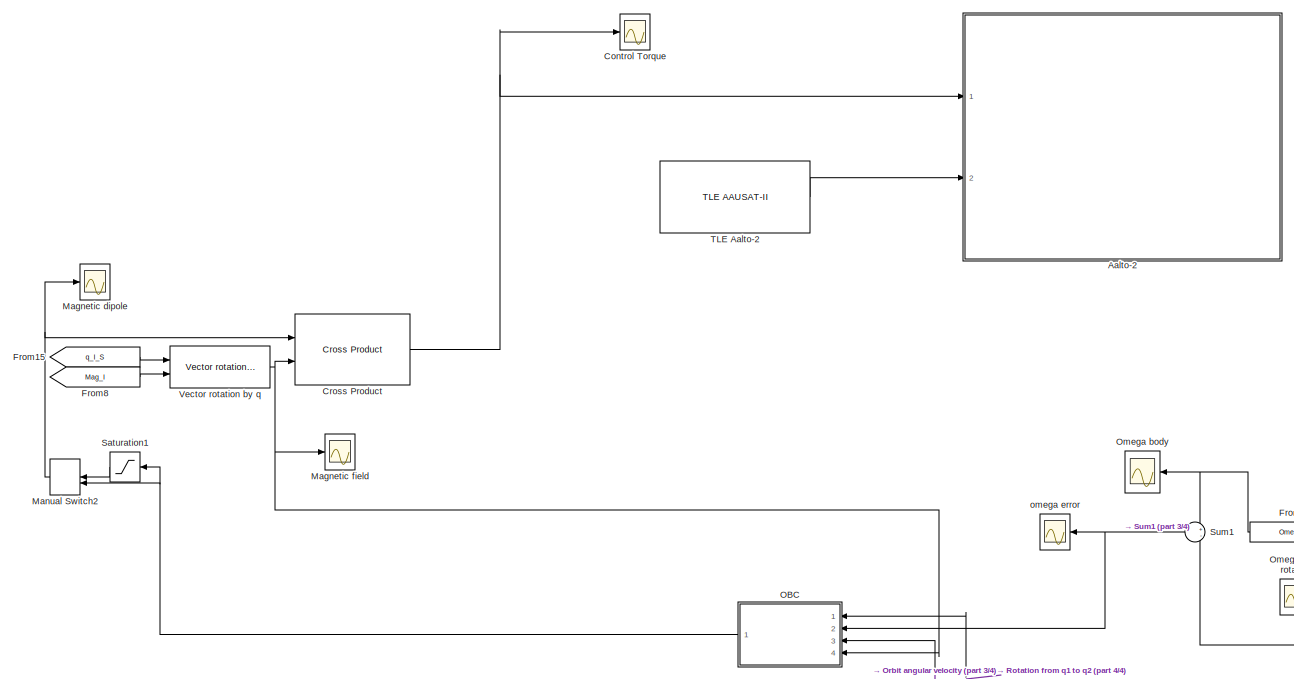
[diagram: root canvas - part 1/4, top center region]
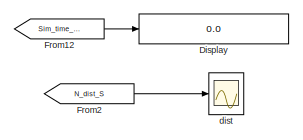
[diagram: root canvas - part 2/4, top right region]
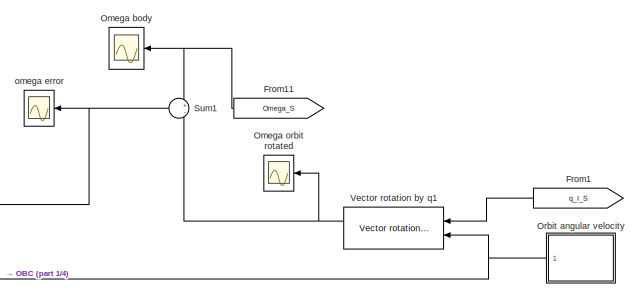
[diagram: root canvas - part 3/4, middle right region]
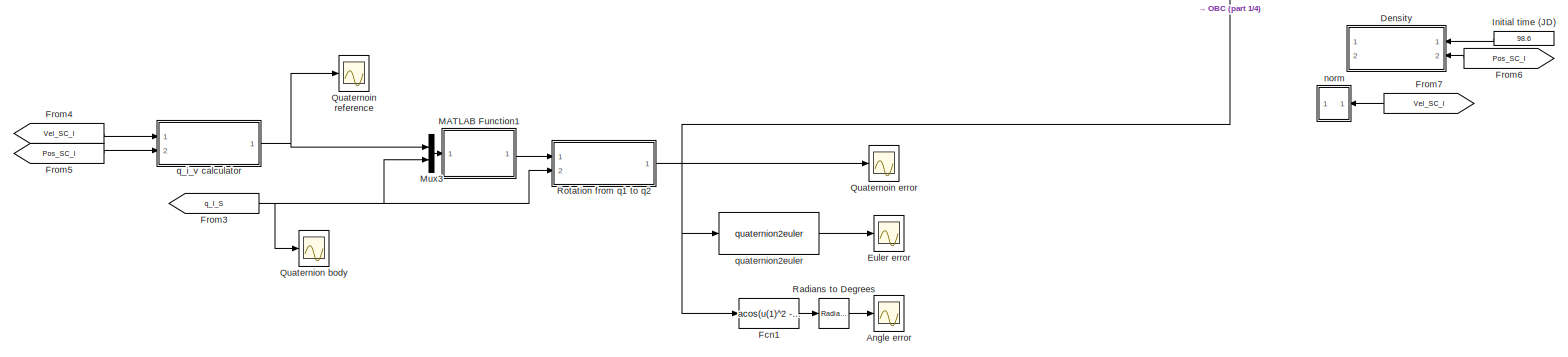
[diagram: root canvas - part 4/4, full width, bottom band]
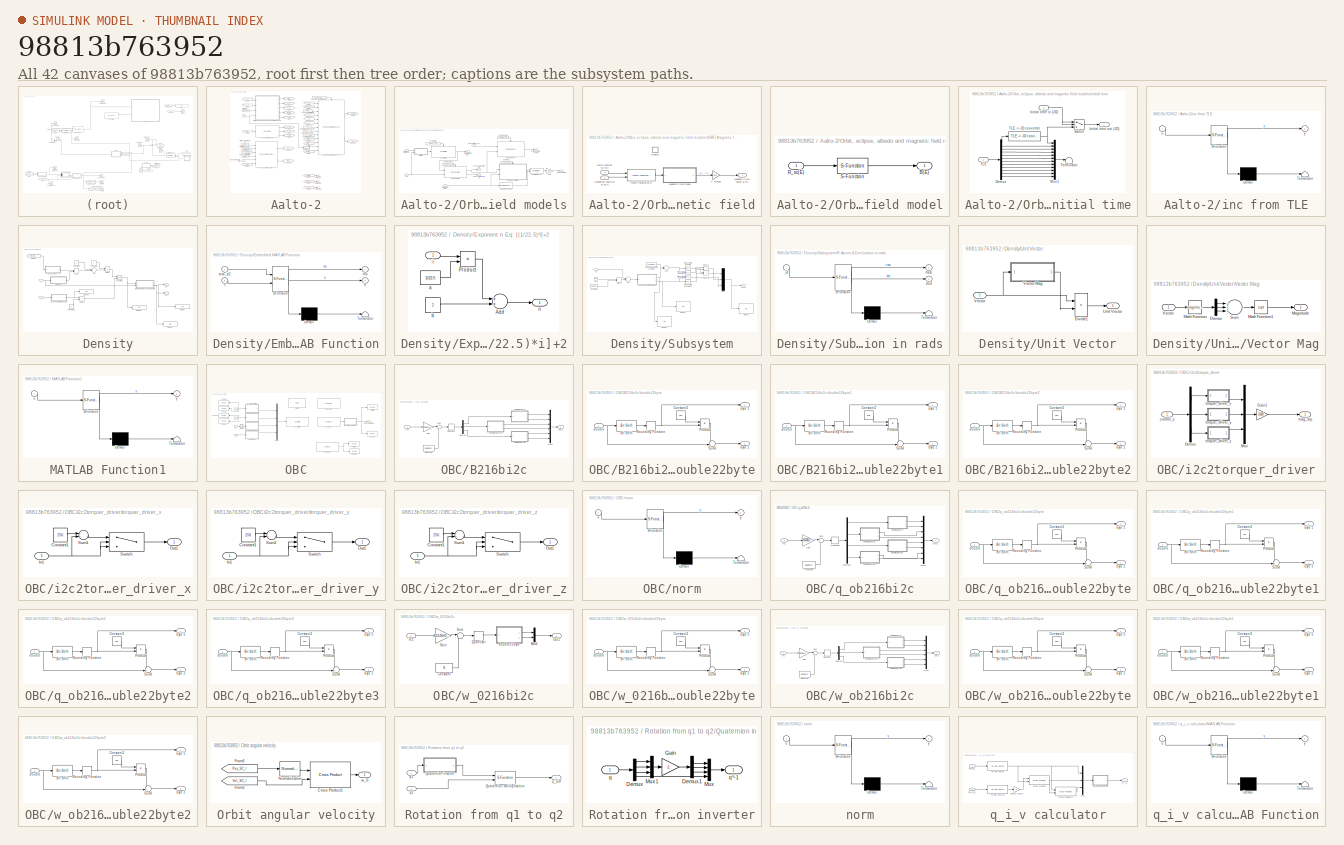
[diagram: thumbnail index - all 42 canvases of the model, root first then tree order]
MODEL slx_98813b763952
KIND model
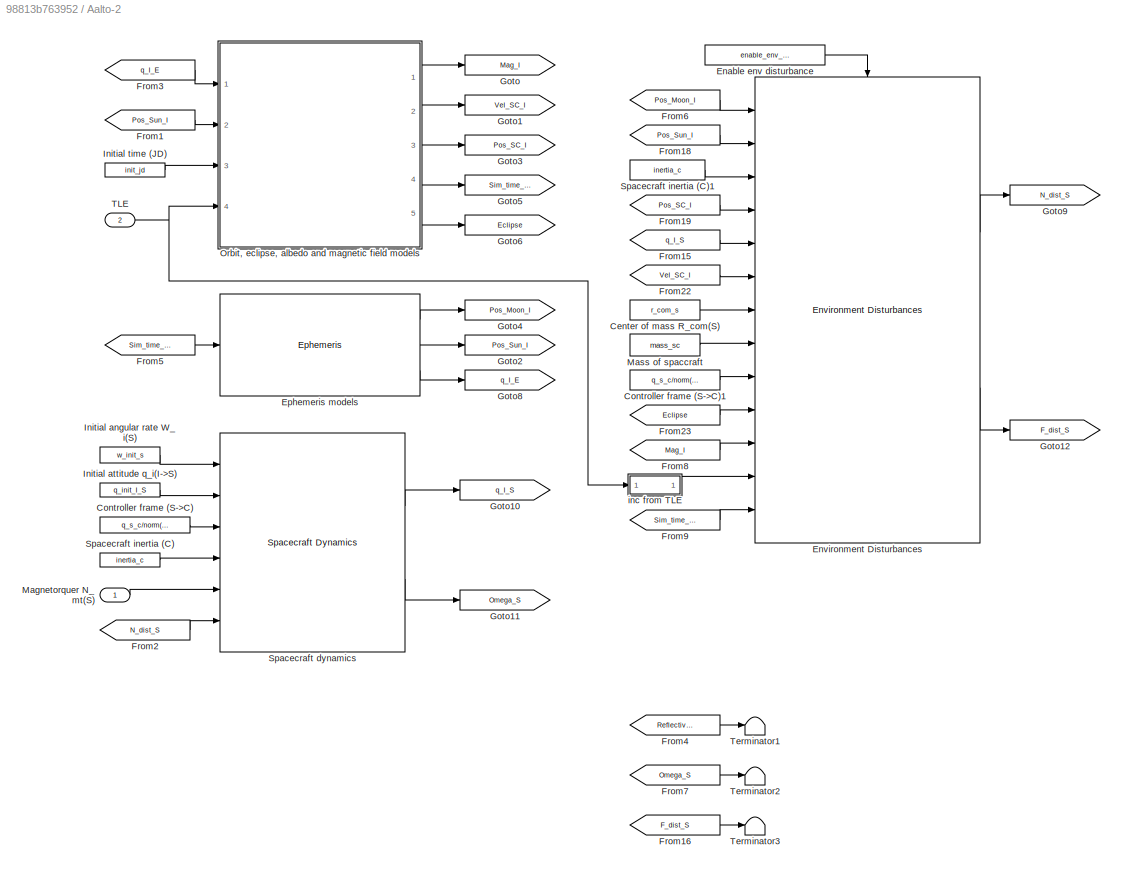
BLOCK [SubSystem] Aalto-2
  AncestorBlock = aausat3_lib/AAUSAT3
  Ports = [2]
  RequestExecContextInheritance = off
  ShowPortLabels = none
BLOCK [Constant] Aalto-2/Center of mass R_com(S)
  Value = r_com_s
BLOCK [Constant] Aalto-2/Controller frame (S->C)
  Value = q_s_c/norm(q_s_c)
BLOCK [Constant] Aalto-2/Controller frame (S->C)1
  Value = q_s_c/norm(q_s_c)
BLOCK [Constant] Aalto-2/Enable env disturbance
  Value = enable_env_disturbance
BLOCK [Reference] Aalto-2/Environment Disturbances  REF=aausat3_lib/Disturbances/Environment Disturbances  (lib defined in mdl_4157f6465749, slx_d9305f96731e)
  Cd = Cd
  Dim = Dim
  G = 6.672e-11
  M_earth = 5.9742e24
  M_moon = 0.073483e24
  M_sun = 1.989e30
  Ports = [13, 2, 1]
  SourceBlock = aausat3_lib/Disturbances/Environment Disturbances
  enable_atmospheric_dist = on
  enable_gravity_dist = on
  enable_mag_residual_dist = on
  enable_rad_dist = on
  rho = rho
  sola_m_flux = solar_m_flux
  solar_absorb_coeff = solar_absorb_coeff
BLOCK [Reference] Aalto-2/Ephemeris models  REF=aausat3_lib/Orbit and Ephemeris/Ephemeris  (lib defined in mdl_4157f6465749, slx_d9305f96731e)
  Ports = [1, 3]
  SourceBlock = aausat3_lib/Orbit and Ephemeris/Ephemeris
  SourceType = SubSystem
BLOCK [From] Aalto-2/From1
  CloseFcn = tagdialog Close
  GotoTag = Pos_Sun_I
  TagVisibility = global
BLOCK [From] Aalto-2/From15
  CloseFcn = tagdialog Close
  GotoTag = q_I_S
  TagVisibility = global
BLOCK [From] Aalto-2/From16
  CloseFcn = tagdialog Close
  GotoTag = F_dist_S
  TagVisibility = global
BLOCK [From] Aalto-2/From18
  CloseFcn = tagdialog Close
  GotoTag = Pos_Sun_I
  TagVisibility = global
BLOCK [From] Aalto-2/From19
  CloseFcn = tagdialog Close
  GotoTag = Pos_SC_I
  TagVisibility = global
BLOCK [From] Aalto-2/From2
  CloseFcn = tagdialog Close
  GotoTag = N_dist_S
  TagVisibility = global
BLOCK [From] Aalto-2/From22
  CloseFcn = tagdialog Close
  GotoTag = Vel_SC_I
  TagVisibility = global
BLOCK [From] Aalto-2/From23
  CloseFcn = tagdialog Close
  GotoTag = Eclipse
  TagVisibility = global
BLOCK [From] Aalto-2/From3
  CloseFcn = tagdialog Close
  GotoTag = q_I_E
  TagVisibility = global
BLOCK [From] Aalto-2/From4
  CloseFcn = tagdialog Close
  GotoTag = Reflectivity
BLOCK [From] Aalto-2/From5
  CloseFcn = tagdialog Close
  GotoTag = Sim_time_JD
  TagVisibility = global
BLOCK [From] Aalto-2/From6
  CloseFcn = tagdialog Close
  GotoTag = Pos_Moon_I
  TagVisibility = global
BLOCK [From] Aalto-2/From7
  CloseFcn = tagdialog Close
  GotoTag = Omega_S
  TagVisibility = global
BLOCK [From] Aalto-2/From8
  CloseFcn = tagdialog Close
  GotoTag = Mag_I
  TagVisibility = global
BLOCK [From] Aalto-2/From9
  CloseFcn = tagdialog Close
  GotoTag = Sim_time_JD
  TagVisibility = global
BLOCK [Goto] Aalto-2/Goto
  GotoTag = Mag_I
  TagVisibility = global
BLOCK [Goto] Aalto-2/Goto1
  GotoTag = Vel_SC_I
  TagVisibility = global
BLOCK [Goto] Aalto-2/Goto10
  GotoTag = q_I_S
  TagVisibility = global
BLOCK [Goto] Aalto-2/Goto11
  GotoTag = Omega_S
  TagVisibility = global
BLOCK [Goto] Aalto-2/Goto12
  GotoTag = F_dist_S
  TagVisibility = global
BLOCK [Goto] Aalto-2/Goto2
  GotoTag = Pos_Sun_I
  TagVisibility = global
BLOCK [Goto] Aalto-2/Goto3
  GotoTag = Pos_SC_I
  TagVisibility = global
BLOCK [Goto] Aalto-2/Goto4
  GotoTag = Pos_Moon_I
  TagVisibility = global
BLOCK [Goto] Aalto-2/Goto5
  GotoTag = Sim_time_JD
  TagVisibility = global
BLOCK [Goto] Aalto-2/Goto6
  GotoTag = Eclipse
  TagVisibility = global
BLOCK [Goto] Aalto-2/Goto8
  GotoTag = q_I_E
  TagVisibility = global
BLOCK [Goto] Aalto-2/Goto9
  GotoTag = N_dist_S
  TagVisibility = global
BLOCK [Constant] Aalto-2/Initial angular rate W_i(S)
  Value = w_init_s
BLOCK [Constant] Aalto-2/Initial attitude q_i(I->S)
  Value = q_init_I_S
BLOCK [Constant] Aalto-2/Initial time (JD)
  Value = init_jd
BLOCK [Inport] Aalto-2/Magnetorquer N_mt(S)
  IconDisplay = Port number
BLOCK [Constant] Aalto-2/Mass of spaccraft
  Value = mass_sc
BLOCK [SubSystem] Aalto-2/Orbit, eclipse, albedo and magnetic field models
  AncestorBlock = aausat3_lib/Orbit and Ephemeris/Orbit and Magnetic field models
  Ports = [4, 5]
  RequestExecContextInheritance = off
BLOCK [SubSystem] Aalto-2/Orbit, eclipse, albedo and magnetic field models/(IGRF) Magnetic field
  AncestorBlock = aausat3_lib/Orbit and Ephemeris/(IGRF) Magnetic field
  Ports = [2, 1, 1]
  RequestExecContextInheritance = off
  TreatAsAtomicUnit = on
BLOCK [Inport] Aalto-2/Orbit, eclipse, albedo and magnetic field models/(IGRF) Magnetic field/Earth rotation q(I->E)
  IconDisplay = Port number
  Port = 2
BLOCK [EnablePort] Aalto-2/Orbit, eclipse, albedo and magnetic field models/(IGRF) Magnetic field/Enable
  Ports = []
BLOCK [SubSystem] Aalto-2/Orbit, eclipse, albedo and magnetic field models/(IGRF) Magnetic field/Magnetic field model
  Ports = [1, 1]
  RequestExecContextInheritance = off
BLOCK [Outport] Aalto-2/Orbit, eclipse, albedo and magnetic field models/(IGRF) Magnetic field/Magnetic field model/B(E)
  IconDisplay = Port number
BLOCK [Inport] Aalto-2/Orbit, eclipse, albedo and magnetic field models/(IGRF) Magnetic field/Magnetic field model/R_sc(E)
  IconDisplay = Port number
BLOCK [S-Function] Aalto-2/Orbit, eclipse, albedo and magnetic field models/(IGRF) Magnetic field/Magnetic field model/S-Function
  EnableBusSupport = off
  FunctionName = igrfS2
  Parameters = 2009,13
  Ports = [1, 1]
BLOCK [Outport] Aalto-2/Orbit, eclipse, albedo and magnetic field models/(IGRF) Magnetic field/Magnetic field vector B(E)
  IconDisplay = Port number
BLOCK [Inport] Aalto-2/Orbit, eclipse, albedo and magnetic field models/(IGRF) Magnetic field/Spacecraft position R_sc(I)
  IconDisplay = Port number
BLOCK [Gain] Aalto-2/Orbit, eclipse, albedo and magnetic field models/(IGRF) Magnetic field/T->Gauss
  Gain = 1e4
BLOCK [Reference] Aalto-2/Orbit, eclipse, albedo and magnetic field models/(IGRF) Magnetic field/Vector rotation by q  REF=aausat3_lib/Math Utilities/Quaternion operations/Vector rotation by q  (lib defined in mdl_4157f6465749, slx_d9305f96731e)
  Ports = [2, 2]
  SourceBlock = aausat3_lib/Math Utilities/Quaternion operations/Vector rotation by q
  SourceType = SubSystem
BLOCK [Reference] Aalto-2/Orbit, eclipse, albedo and magnetic field models/Custom time  REF=aausat3_lib/Orbit and Ephemeris/Custom time  (lib defined in mdl_4157f6465749, slx_d9305f96731e)
  Ports = [1, 1, 1]
  SourceBlock = aausat3_lib/Orbit and Ephemeris/Custom time
  SourceType = SubSystem
BLOCK [Inport] Aalto-2/Orbit, eclipse, albedo and magnetic field models/Earth rotation q(I->E)
  IconDisplay = Port number
BLOCK [Reference] Aalto-2/Orbit, eclipse, albedo and magnetic field models/Eclipse model  REF=aausat3_lib/Orbit and Ephemeris/Eclipse model  (lib defined in mdl_4157f6465749, slx_d9305f96731e)
  Ports = [2, 1, 1]
  SourceBlock = aausat3_lib/Orbit and Ephemeris/Eclipse model
  enable = off
  r_e = r_e
  theta_e = theta_e
BLOCK [Outport] Aalto-2/Orbit, eclipse, albedo and magnetic field models/Eclipse: 1=true, 0=false
  IconDisplay = Port number
  Port = 5
  PortDimensions = 1
BLOCK [Gain] Aalto-2/Orbit, eclipse, albedo and magnetic field models/Gain
  Gain = 1e-4
  OutDataTypeStr = Inherit: Inherit via internal rule
  ParamDataTypeStr = Inherit: Inherit via internal rule
  SaturateOnIntegerOverflow = off
BLOCK [Inport] Aalto-2/Orbit, eclipse, albedo and magnetic field models/Initial time ti(JD)
  IconDisplay = Port number
  Port = 3
BLOCK [Outport] Aalto-2/Orbit, eclipse, albedo and magnetic field models/Mag [Tesla] B(I)
  IconDisplay = Port number
BLOCK [Reference] Aalto-2/Orbit, eclipse, albedo and magnetic field models/Quaternion inverter  REF=aausat3_lib/Math Utilities/Quaternion operations/Quaternion inverter  (lib defined in mdl_4157f6465749, slx_d9305f96731e)
  Ports = [1, 1]
  SourceBlock = aausat3_lib/Math Utilities/Quaternion operations/Quaternion inverter
  SourceType = SubSystem
BLOCK [Reference] Aalto-2/Orbit, eclipse, albedo and magnetic field models/SGP4 position  REF=aausat3_lib/Orbit and Ephemeris/SGP4 position  (lib defined in mdl_4157f6465749, slx_d9305f96731e)
  Ports = [2, 2, 1]
  SourceBlock = aausat3_lib/Orbit and Ephemeris/SGP4 position
  SourceType = SubSystem
BLOCK [Outport] Aalto-2/Orbit, eclipse, albedo and magnetic field models/Simulation time t(JD)
  IconDisplay = Port number
  Port = 4
BLOCK [Outport] Aalto-2/Orbit, eclipse, albedo and magnetic field models/Spacecraft position R (I)
  IconDisplay = Port number
  Port = 3
BLOCK [Outport] Aalto-2/Orbit, eclipse, albedo and magnetic field models/Spacecraft velocity V (I)
  IconDisplay = Port number
  Port = 2
BLOCK [Inport] Aalto-2/Orbit, eclipse, albedo and magnetic field models/Sun position R_s(I)
  IconDisplay = Port number
  Port = 2
BLOCK [Inport] Aalto-2/Orbit, eclipse, albedo and magnetic field models/TLE
  IconDisplay = Port number
  Port = 4
BLOCK [Reference] Aalto-2/Orbit, eclipse, albedo and magnetic field models/Vector rotation by q  REF=aausat3_lib/Math Utilities/Quaternion operations/Vector rotation by q  (lib defined in mdl_4157f6465749, slx_d9305f96731e)
  Ports = [2, 2]
  SourceBlock = aausat3_lib/Math Utilities/Quaternion operations/Vector rotation by q
  SourceType = SubSystem
BLOCK [Constant] Aalto-2/Orbit, eclipse, albedo and magnetic field models/enable SGP4
  Value = enable_sgp4
BLOCK [Constant] Aalto-2/Orbit, eclipse, albedo and magnetic field models/enable eclipse
  Value = enable_eclipse
BLOCK [Constant] Aalto-2/Orbit, eclipse, albedo and magnetic field models/enable time
  Value = enable_custom_time
BLOCK [Constant] Aalto-2/Orbit, eclipse, albedo and magnetic field models/enable?1
  Value = enable_IGRF
BLOCK [SubSystem] Aalto-2/Orbit, eclipse, albedo and magnetic field models/initial time
  Ports = [2, 1]
  RequestExecContextInheritance = off
BLOCK [Demux] Aalto-2/Orbit, eclipse, albedo and magnetic field models/initial time/Demux
  DisplayOption = bar
  Outputs = 12
  Ports = [1, 12]
BLOCK [Inport] Aalto-2/Orbit, eclipse, albedo and magnetic field models/initial time/Initial time in (JD)
  IconDisplay = Port number
BLOCK [Outport] Aalto-2/Orbit, eclipse, albedo and magnetic field models/initial time/Initial time out (JD)
  IconDisplay = Port number
BLOCK [Mux] Aalto-2/Orbit, eclipse, albedo and magnetic field models/initial time/Mux1
  DisplayOption = bar
  Inputs = 12
  Ports = [12, 1]
BLOCK [Switch] Aalto-2/Orbit, eclipse, albedo and magnetic field models/initial time/Switch
  Criteria = u2 > Threshold
  InputSameDT = off
  SaturateOnIntegerOverflow = off
BLOCK [Inport] Aalto-2/Orbit, eclipse, albedo and magnetic field models/initial time/TLE
  IconDisplay = Port number
  Port = 2
BLOCK [Reference] Aalto-2/Orbit, eclipse, albedo and magnetic field models/initial time/TLE -> JD converter  REF=aausat3_lib/Other Model Utilities/TLE -> JD converter  (lib defined in mdl_4157f6465749, slx_d9305f96731e)
  Ports = [1, 1]
  SourceBlock = aausat3_lib/Other Model Utilities/TLE -> JD converter
  SourceType = SubSystem
BLOCK [Terminator] Aalto-2/Orbit, eclipse, albedo and magnetic field models/initial time/Terminator
BLOCK [Reference] Aalto-2/Spacecraft dynamics  REF=aausat3_lib/Dynamics and Kinematics/Spacecraft Dynamics  (lib defined in mdl_4157f6465749, slx_d9305f96731e)
  Ports = [6, 2]
  SourceBlock = aausat3_lib/Dynamics and Kinematics/Spacecraft Dynamics
  SourceType = SubSystem
BLOCK [Constant] Aalto-2/Spacecraft inertia (C)
  Value = inertia_c
BLOCK [Constant] Aalto-2/Spacecraft inertia (C)1
  Value = inertia_c
BLOCK [Inport] Aalto-2/TLE
  IconDisplay = Port number
  Port = 2
BLOCK [Terminator] Aalto-2/Terminator1
BLOCK [Terminator] Aalto-2/Terminator2
BLOCK [Terminator] Aalto-2/Terminator3
BLOCK [SubSystem] Aalto-2/inc from TLE
  ErrorFcn = Stateflow.Translate.translate
  PermitHierarchicalResolution = ExplicitOnly
  Ports = [1, 1]
  RequestExecContextInheritance = off
  SFBlockType = MATLAB Function
  TreatAsAtomicUnit = on
BLOCK [Demux] Aalto-2/inc from TLE/ Demux 
  Outputs = 1
  Ports = [1, 1]
BLOCK [S-Function] Aalto-2/inc from TLE/ SFunction 
  EnableBusSupport = on
  FunctionName = sf_sfun
  PortCounts = [1 2]
  Ports = [1, 2]
  Tag = Stateflow S-Function state_feedback_cntrl 17
BLOCK [Terminator] Aalto-2/inc from TLE/ Terminator 
BLOCK [Inport] Aalto-2/inc from TLE/u
  IconDisplay = Port number
BLOCK [Outport] Aalto-2/inc from TLE/y
  IconDisplay = Port number
BLOCK [Scope] Angle error
  DataFormat = StructureWithTime
  Floating = off
  LimitDataPoints = off
  NumInputPorts = 1
  Ports = [1]
  SampleInput = on
  SaveName = angle_error
  SaveToWorkspace = on
  ShowLegends = off
  TimeRange = 6000
  YMax = 85
  YMin = 0
  ZoomMode = yonly
BLOCK [Scope] Control Torque
  DataFormat = StructureWithTime
  Floating = off
  LimitDataPoints = off
  NumInputPorts = 1
  Ports = [1]
  SampleInput = on
  SaveName = control_torque
  SaveToWorkspace = on
  ShowLegends = off
  TimeRange = 6000
  YMax = 1.1e-05
  YMin = -1.1e-05
  ZoomMode = yonly
BLOCK [Reference] Cross Product  REF=aausat3_lib/Math Utilities/Vector operations/Cross Product  (lib defined in mdl_4157f6465749, slx_d9305f96731e)
  Ports = [2, 1]
  SourceBlock = aausat3_lib/Math Utilities/Vector operations/Cross Product
  SourceType = SubSystem
BLOCK [SubSystem] Density
  Ports = [2, 2]
  RequestExecContextInheritance = off
BLOCK [Sum] Density/Add
  InputSameDT = off
  OutDataTypeStr = Inherit: Inherit via internal rule
  Ports = [2, 1]
  SaturateOnIntegerOverflow = off
BLOCK [Constant] Density/Constant
BLOCK [Constant] Density/Constant1
  Value = 2
BLOCK [Constant] Density/Constant2
  Value = 2
BLOCK [Display] Density/Display
  Decimation = 1
  Ports = [1]
BLOCK [Display] Density/Display1
  Decimation = 1
  Ports = [1]
BLOCK [Display] Density/Display3
  Decimation = 1
  Ports = [1]
BLOCK [Display] Density/Display4
  Decimation = 1
  Ports = [1]
BLOCK [Product] Density/Divide
  InputSameDT = off
  Inputs = /*
  OutDataTypeStr = Inherit: Inherit via internal rule
  Ports = [2, 1]
  RndMeth = Floor
  SaturateOnIntegerOverflow = off
BLOCK [Product] Density/Divide1
  InputSameDT = off
  Inputs = */
  OutDataTypeStr = Inherit: Inherit via internal rule
  Ports = [2, 1]
  RndMeth = Floor
  SaturateOnIntegerOverflow = off
BLOCK [SubSystem] Density/Embedded MATLAB Function
  ErrorFcn = Stateflow.Translate.translate
  PermitHierarchicalResolution = ExplicitOnly
  Ports = [2, 2]
  RequestExecContextInheritance = off
  SFBlockType = MATLAB Function
  TreatAsAtomicUnit = on
BLOCK [Demux] Density/Embedded MATLAB Function/ Demux 
  Outputs = 1
  Ports = [1, 1]
BLOCK [S-Function] Density/Embedded MATLAB Function/ SFunction 
  EnableBusSupport = on
  FunctionName = sf_sfun
  PortCounts = [2 3]
  Ports = [2, 3]
  Tag = Stateflow S-Function state_feedback_cntrl 18
BLOCK [Terminator] Density/Embedded MATLAB Function/ Terminator 
BLOCK [Inport] Density/Embedded MATLAB Function/cosn_si2
  IconDisplay = Port number
BLOCK [Outport] Density/Embedded MATLAB Function/h
  IconDisplay = Port number
  Port = 2
BLOCK [Inport] Density/Embedded MATLAB Function/r
  IconDisplay = Port number
  Port = 2
BLOCK [Outport] Density/Embedded MATLAB Function/rho
  IconDisplay = Port number
BLOCK [SubSystem] Density/Exponent n Eq: [(1//22.5)*i]+2
  Ports = [1, 1]
  RequestExecContextInheritance = off
BLOCK [Sum] Density/Exponent n Eq: [(1//22.5)*i]+2/Add
  InputSameDT = off
  OutDataTypeStr = Inherit: Inherit via internal rule
  Ports = [2, 1]
  SaturateOnIntegerOverflow = off
BLOCK [Product] Density/Exponent n Eq: [(1//22.5)*i]+2/Product
  InputSameDT = off
  OutDataTypeStr = Inherit: Inherit via internal rule
  Ports = [2, 1]
  SaturateOnIntegerOverflow = off
BLOCK [Constant] Density/Exponent n Eq: [(1//22.5)*i]+2/a
  Value = 1/22.5
BLOCK [Constant] Density/Exponent n Eq: [(1//22.5)*i]+2/b
  Value = 2
BLOCK [Inport] Density/Exponent n Eq: [(1//22.5)*i]+2/i
  IconDisplay = Port number
BLOCK [Outport] Density/Exponent n Eq: [(1//22.5)*i]+2/n
  IconDisplay = Port number
BLOCK [From] Density/From19
  CloseFcn = tagdialog Close
  GotoTag = Sim_time_JD
  TagVisibility = global
BLOCK [SubSystem] Density/Subsystem
  Ports = [1, 1]
  RequestExecContextInheritance = off
BLOCK [Constant] Density/Subsystem/30 deg Lag Angle in Longitude
  Value = 30*(pi/180)
BLOCK [Sum] Density/Subsystem/Add1
  InputSameDT = off
  OutDataTypeStr = Inherit: Inherit via internal rule
  Ports = [2, 1]
  SaturateOnIntegerOverflow = off
BLOCK [Sum] Density/Subsystem/Add2
  InputSameDT = off
  OutDataTypeStr = Inherit: Inherit via internal rule
  Ports = [2, 1]
  SaturateOnIntegerOverflow = off
BLOCK [Clock] Density/Subsystem/Clock
BLOCK [Constant] Density/Subsystem/Constant3
  Value = 86400
BLOCK [Display] Density/Subsystem/Display
  Decimation = 1
  Ports = [1]
BLOCK [Display] Density/Subsystem/Display1
  Decimation = 1
  Ports = [1]
BLOCK [Display] Density/Subsystem/Display2
  Decimation = 1
  Ports = [1]
BLOCK [Product] Density/Subsystem/Divide2
  InputSameDT = off
  Inputs = */
  OutDataTypeStr = Inherit: Inherit via internal rule
  Ports = [2, 1]
  RndMeth = Floor
  SaturateOnIntegerOverflow = off
BLOCK [Inport] Density/Subsystem/JD
  IconDisplay = Port number
BLOCK [Mux] Density/Subsystem/Mux
  DisplayOption = bar
  Inputs = 3
  Ports = [3, 1]
BLOCK [Product] Density/Subsystem/Product
  InputSameDT = off
  OutDataTypeStr = Inherit: Inherit via internal rule
  Ports = [2, 1]
  SaturateOnIntegerOverflow = off
BLOCK [Product] Density/Subsystem/Product1
  InputSameDT = off
  OutDataTypeStr = Inherit: Inherit via internal rule
  Ports = [2, 1]
  SaturateOnIntegerOverflow = off
BLOCK [SubSystem] Density/Subsystem/R.Ascen & Declination in rads
  ErrorFcn = Stateflow.Translate.translate
  PermitHierarchicalResolution = ExplicitOnly
  Ports = [1, 2]
  RequestExecContextInheritance = off
  SFBlockType = MATLAB Function
  TreatAsAtomicUnit = on
BLOCK [Demux] Density/Subsystem/R.Ascen & Declination in rads/ Demux 
  Outputs = 1
  Ports = [1, 1]
BLOCK [S-Function] Density/Subsystem/R.Ascen & Declination in rads/ SFunction 
  EnableBusSupport = on
  FunctionName = sf_sfun
  PortCounts = [1 3]
  Ports = [1, 3]
  Tag = Stateflow S-Function state_feedback_cntrl 19
BLOCK [Terminator] Density/Subsystem/R.Ascen & Declination in rads/ Terminator 
BLOCK [Outport] Density/Subsystem/R.Ascen & Declination in rads/decl
  IconDisplay = Port number
  Port = 2
BLOCK [Inport] Density/Subsystem/R.Ascen & Declination in rads/jd
  IconDisplay = Port number
BLOCK [Outport] Density/Subsystem/R.Ascen & Declination in rads/rtasc
  IconDisplay = Port number
BLOCK [Trigonometry] Density/Subsystem/Trigonometric Function
  Ports = [1, 1]
BLOCK [Trigonometry] Density/Subsystem/Trigonometric Function1
  Operator = cos
  Ports = [1, 1]
BLOCK [Trigonometry] Density/Subsystem/Trigonometric Function2
  Ports = [1, 1]
BLOCK [Trigonometry] Density/Subsystem/Trigonometric Function3
  Operator = cos
  Ports = [1, 1]
BLOCK [Outport] Density/Subsystem/e-sun
  IconDisplay = Port number
BLOCK [SubSystem] Density/Unit Vector
  Ports = [1, 1]
  RequestExecContextInheritance = off
BLOCK [Product] Density/Unit Vector/Divide1
  InputSameDT = off
  Inputs = */
  OutDataTypeStr = Inherit: Inherit via internal rule
  Ports = [2, 1]
  RndMeth = Floor
  SaturateOnIntegerOverflow = off
BLOCK [Outport] Density/Unit Vector/Unit Vector
  IconDisplay = Port number
BLOCK [Inport] Density/Unit Vector/Vector
  IconDisplay = Port number
BLOCK [SubSystem] Density/Unit Vector/Vector Mag
  Ports = [1, 1]
  RequestExecContextInheritance = off
BLOCK [Demux] Density/Unit Vector/Vector Mag/Demux
  DisplayOption = bar
  Outputs = 3
  Ports = [1, 3]
BLOCK [Outport] Density/Unit Vector/Vector Mag/Magnitude
  IconDisplay = Port number
BLOCK [Math] Density/Unit Vector/Vector Mag/Math Function
  Operator = magnitude^2
  Ports = [1, 1]
BLOCK [Math] Density/Unit Vector/Vector Mag/Math Function1
  Operator = sqrt
  Ports = [1, 1]
BLOCK [Sum] Density/Unit Vector/Vector Mag/Sum
  InputSameDT = off
  Inputs = +++
  OutDataTypeStr = Inherit: Inherit via internal rule
  Ports = [3, 1]
  SaturateOnIntegerOverflow = off
BLOCK [Inport] Density/Unit Vector/Vector Mag/Vector
  IconDisplay = Port number
BLOCK [Math] Density/cosn(si//2)
  Operator = pow
  Ports = [2, 1]
BLOCK [DotProduct] Density/eb.er
  OutDataTypeStr = Inherit: Inherit via internal rule
BLOCK [Outport] Density/geo-h
  IconDisplay = Port number
  Port = 2
BLOCK [Inport] Density/i
  IconDisplay = Port number
BLOCK [Inport] Density/r
  IconDisplay = Port number
  Port = 2
BLOCK [Outport] Density/rho
  IconDisplay = Port number
BLOCK [Display] Display
  Decimation = 1
  Format = long
  Ports = [1]
BLOCK [Scope] Euler error
  DataFormat = StructureWithTime
  Floating = off
  LimitDataPoints = off
  NumInputPorts = 1
  Ports = [1]
  SampleInput = on
  SaveName = ScopeData3
  ShowLegends = off
  TimeRange = 6000
  YMax = 3.5
  YMin = -3.5
  ZoomMode = yonly
BLOCK [Fcn] Fcn1
  Expr = acos(u(1)^2 - u(2)^2 - u(3)^2 + u(4)^2)
BLOCK [From] From1
  CloseFcn = tagdialog Close
  GotoTag = q_I_S
  TagVisibility = global
BLOCK [From] From11
  CloseFcn = tagdialog Close
  GotoTag = Omega_S
  TagVisibility = global
BLOCK [From] From12
  CloseFcn = tagdialog Close
  GotoTag = Sim_time_JD
  TagVisibility = global
BLOCK [From] From15
  CloseFcn = tagdialog Close
  GotoTag = q_I_S
  TagVisibility = global
BLOCK [From] From2
  CloseFcn = tagdialog Close
  GotoTag = N_dist_S
  TagVisibility = global
BLOCK [From] From3
  CloseFcn = tagdialog Close
  GotoTag = q_I_S
  TagVisibility = global
BLOCK [From] From4
  CloseFcn = tagdialog Close
  GotoTag = Vel_SC_I
  TagVisibility = global
BLOCK [From] From5
  CloseFcn = tagdialog Close
  GotoTag = Pos_SC_I
  TagVisibility = global
BLOCK [From] From6
  CloseFcn = tagdialog Close
  GotoTag = Pos_SC_I
  TagVisibility = global
BLOCK [From] From7
  CloseFcn = tagdialog Close
  GotoTag = Vel_SC_I
  TagVisibility = global
BLOCK [From] From8
  CloseFcn = tagdialog Close
  GotoTag = Mag_I
  TagVisibility = global
BLOCK [Constant] Initial time (JD)
  Value = 98.6
BLOCK [SubSystem] MATLAB Function1
  ErrorFcn = Stateflow.Translate.translate
  PermitHierarchicalResolution = ExplicitOnly
  Ports = [1, 1]
  RequestExecContextInheritance = off
  SFBlockType = MATLAB Function
  TreatAsAtomicUnit = on
BLOCK [Demux] MATLAB Function1/ Demux 
  Outputs = 1
  Ports = [1, 1]
BLOCK [S-Function] MATLAB Function1/ SFunction 
  EnableBusSupport = on
  FunctionName = sf_sfun
  PortCounts = [1 2]
  Ports = [1, 2]
  Tag = Stateflow S-Function state_feedback_cntrl 1
BLOCK [Terminator] MATLAB Function1/ Terminator 
BLOCK [Inport] MATLAB Function1/u
  IconDisplay = Port number
BLOCK [Outport] MATLAB Function1/y
  IconDisplay = Port number
BLOCK [Scope] Magnetic dipole
  DataFormat = StructureWithTime
  Floating = off
  LimitDataPoints = off
  NumInputPorts = 1
  Ports = [1]
  SampleInput = on
  SaveName = magnetic_dipole
  SaveToWorkspace = on
  ShowLegends = off
  TimeRange = 6000
  YMax = 0.2
  YMin = -0.2
  ZoomMode = yonly
BLOCK [Scope] Magnetic field
  DataFormat = StructureWithTime
  Floating = off
  LimitDataPoints = off
  NumInputPorts = 1
  Ports = [1]
  SampleInput = on
  SaveName = magnetic_field
  SaveToWorkspace = on
  ShowLegends = off
  TimeRange = 6000
  YMax = 2.5e-05
  YMin = -2.5e-05
  ZoomMode = xonly
BLOCK [ManualSwitch] Manual Switch2
BLOCK [Mux] Mux3
  DisplayOption = bar
  Inputs = 2
  Ports = [2, 1]
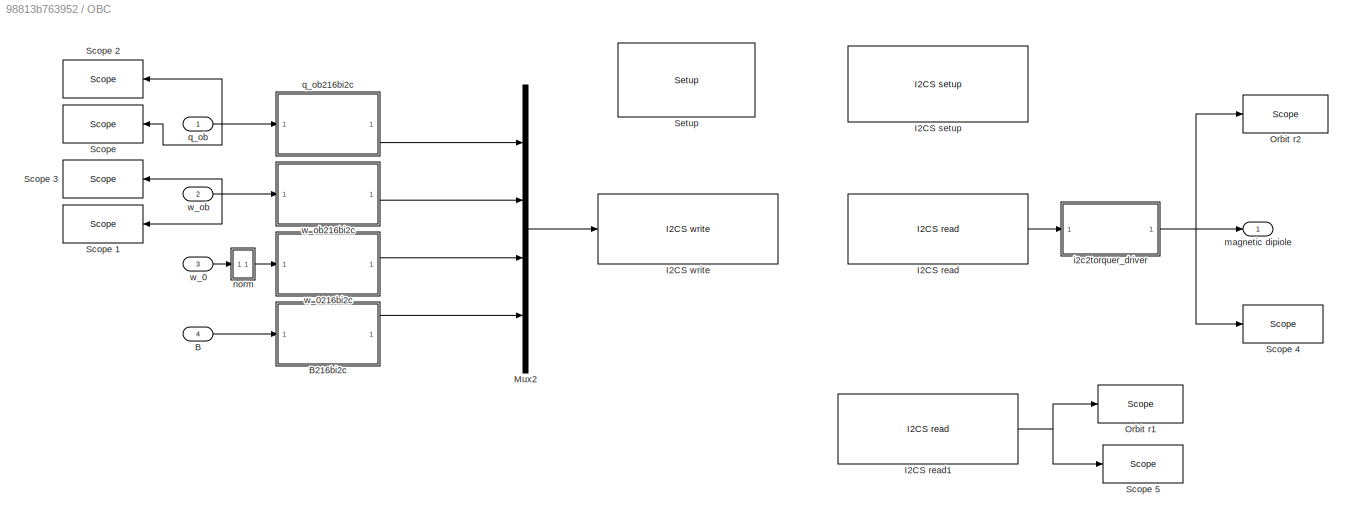
BLOCK [SubSystem] OBC
  Ports = [4, 1]
  RequestExecContextInheritance = off
BLOCK [Inport] OBC/B
  IconDisplay = Port number
  Port = 4
BLOCK [SubSystem] OBC/B216bi2c
  Ports = [1, 1]
  RequestExecContextInheritance = off
BLOCK [Constant] OBC/B216bi2c/Constant
  SampleTime = -1
  Value = 65536/2
BLOCK [Demux] OBC/B216bi2c/Demux1
  DisplayOption = bar
  Outputs = 3
  Ports = [1, 3]
BLOCK [Gain] OBC/B216bi2c/Gain
  Gain = 65536/2/0.00005
  OutDataTypeStr = Inherit: Inherit via internal rule
  ParamDataTypeStr = Inherit: Inherit via internal rule
  SaturateOnIntegerOverflow = off
BLOCK [Inport] OBC/B216bi2c/In1
  IconDisplay = Port number
BLOCK [Mux] OBC/B216bi2c/Mux1
  DisplayOption = bar
  Inputs = 6
  Ports = [6, 1]
BLOCK [Outport] OBC/B216bi2c/Out1
  IconDisplay = Port number
BLOCK [Quantizer] OBC/B216bi2c/Quantizer
  QuantizationInterval = 1
BLOCK [Sum] OBC/B216bi2c/Sum
  IconShape = round
  InputSameDT = off
  Inputs = |++
  OutDataTypeStr = Inherit: Inherit via internal rule
  Ports = [2, 1]
  SaturateOnIntegerOverflow = off
BLOCK [SubSystem] OBC/B216bi2c/double22byte
  Ports = [1, 2]
  RequestExecContextInheritance = off
BLOCK [Reference] OBC/B216bi2c/double22byte/Bit Shift  REF=hdlsllib/HDL Operations/Bit Shift
  N = 8
  Ports = [1, 1]
  SourceBlock = hdlsllib/HDL Operations/Bit Shift
  SourceType = Bit Shift
  mode = Shift Right Arithmetic
BLOCK [Constant] OBC/B216bi2c/double22byte/Constant2
  Value = 256
BLOCK [Product] OBC/B216bi2c/double22byte/Product
  InputSameDT = off
  OutDataTypeStr = Inherit: Inherit via internal rule
  Ports = [2, 1]
  RndMeth = Floor
  SaturateOnIntegerOverflow = off
BLOCK [Rounding] OBC/B216bi2c/double22byte/Rounding Function
BLOCK [Sum] OBC/B216bi2c/double22byte/Sum4
  IconShape = round
  InputSameDT = off
  Inputs = -+|
  OutDataTypeStr = Inherit: Inherit via internal rule
  Ports = [2, 1]
  SaturateOnIntegerOverflow = off
BLOCK [Outport] OBC/B216bi2c/double22byte/byte 1
  IconDisplay = Port number
BLOCK [Outport] OBC/B216bi2c/double22byte/byte 2
  IconDisplay = Port number
  Port = 2
BLOCK [Inport] OBC/B216bi2c/double22byte/double
  IconDisplay = Port number
BLOCK [SubSystem] OBC/B216bi2c/double22byte1
  Ports = [1, 2]
  RequestExecContextInheritance = off
BLOCK [Reference] OBC/B216bi2c/double22byte1/Bit Shift  REF=hdlsllib/HDL Operations/Bit Shift
  N = 8
  Ports = [1, 1]
  SourceBlock = hdlsllib/HDL Operations/Bit Shift
  SourceType = Bit Shift
  mode = Shift Right Arithmetic
BLOCK [Constant] OBC/B216bi2c/double22byte1/Constant2
  Value = 256
BLOCK [Product] OBC/B216bi2c/double22byte1/Product
  InputSameDT = off
  OutDataTypeStr = Inherit: Inherit via internal rule
  Ports = [2, 1]
  RndMeth = Floor
  SaturateOnIntegerOverflow = off
BLOCK [Rounding] OBC/B216bi2c/double22byte1/Rounding Function
BLOCK [Sum] OBC/B216bi2c/double22byte1/Sum4
  IconShape = round
  InputSameDT = off
  Inputs = -+|
  OutDataTypeStr = Inherit: Inherit via internal rule
  Ports = [2, 1]
  SaturateOnIntegerOverflow = off
BLOCK [Outport] OBC/B216bi2c/double22byte1/byte 1
  IconDisplay = Port number
BLOCK [Outport] OBC/B216bi2c/double22byte1/byte 2
  IconDisplay = Port number
  Port = 2
BLOCK [Inport] OBC/B216bi2c/double22byte1/double
  IconDisplay = Port number
BLOCK [SubSystem] OBC/B216bi2c/double22byte2
  Ports = [1, 2]
  RequestExecContextInheritance = off
BLOCK [Reference] OBC/B216bi2c/double22byte2/Bit Shift  REF=hdlsllib/HDL Operations/Bit Shift
  N = 8
  Ports = [1, 1]
  SourceBlock = hdlsllib/HDL Operations/Bit Shift
  SourceType = Bit Shift
  mode = Shift Right Arithmetic
BLOCK [Constant] OBC/B216bi2c/double22byte2/Constant2
  Value = 256
BLOCK [Product] OBC/B216bi2c/double22byte2/Product
  InputSameDT = off
  OutDataTypeStr = Inherit: Inherit via internal rule
  Ports = [2, 1]
  RndMeth = Floor
  SaturateOnIntegerOverflow = off
BLOCK [Rounding] OBC/B216bi2c/double22byte2/Rounding Function
BLOCK [Sum] OBC/B216bi2c/double22byte2/Sum4
  IconShape = round
  InputSameDT = off
  Inputs = -+|
  OutDataTypeStr = Inherit: Inherit via internal rule
  Ports = [2, 1]
  SaturateOnIntegerOverflow = off
BLOCK [Outport] OBC/B216bi2c/double22byte2/byte 1
  IconDisplay = Port number
BLOCK [Outport] OBC/B216bi2c/double22byte2/byte 2
  IconDisplay = Port number
  Port = 2
BLOCK [Inport] OBC/B216bi2c/double22byte2/double
  IconDisplay = Port number
BLOCK [Reference] OBC/I2CS read  REF=speedgoatlib_IO311/I2C/I2CS read
  Ports = [0, 1]
  SourceBlock = speedgoatlib_IO311/I2C/I2CS read
  SourceType = i2csread_IO311
  chan = 1
  id = 1
  pciSlot = -1
  regs = [1 2 3]
  ts = 0.001
BLOCK [Reference] OBC/I2CS read1  REF=speedgoatlib_IO311/I2C/I2CS read
  Ports = [0, 1]
  SourceBlock = speedgoatlib_IO311/I2C/I2CS read
  SourceType = i2csread_IO311
  chan = 1
  id = 1
  pciSlot = -1
  regs = [26 27 28 29]
  ts = 0.001
BLOCK [Reference] OBC/I2CS setup  REF=speedgoatlib_IO311/I2C/I2CS setup
  Ports = []
  SourceBlock = speedgoatlib_IO311/I2C/I2CS setup
  SourceType = i2cs_IO311
  chan = 1
  id = 1
  pciSlot = -1
  slaveID = 4
  ts = -1
BLOCK [Reference] OBC/I2CS write  REF=speedgoatlib_IO311/I2C/I2CS write
  Ports = [1]
  SourceBlock = speedgoatlib_IO311/I2C/I2CS write
  SourceType = i2cswrite_IO311
  chan = 1
  id = 1
  pciSlot = -1
  regs = [4 5 6 7 8 9 10 11 12 13 14 15 16 17 18 19 20 21 22 23 24 25]
  ts = 0.001
BLOCK [Mux] OBC/Mux2
  DisplayOption = bar
  Ports = [4, 1]
BLOCK [Reference] OBC/Orbit r1  REF=slrtlib/Displays and
Logging/Scope 
  Ports = [1]
  SourceBlock = slrtlib/Displays and\nLogging/Scope
  SourceType = xpcscopeblock
  autorestart = off
  autostart = on
  dynamicfilemode = off
  filename = timings1.dat
  formatstr = '%15.6f'
  grid = on
  interleave = 100
  maxwritefilesize = 512*1024^2
  mode = Lazy
  noprepostsamples = 0
  nosamples = 1000000
  scopeno = 9
  scopetype = File
  triggerlevel = 0.0
  triggermode = FreeRun
  triggersample = 0
  triggerscope = 1
  triggersignal = 1
  triggerslope = Either
  trigsignalfromport = off
  viewmode = Numerical
  writesize = 512*1024*1024
  ylimits = [0,0]
BLOCK [Reference] OBC/Orbit r2  REF=slrtlib/Displays and
Logging/Scope 
  Ports = [1]
  SourceBlock = slrtlib/Displays and\nLogging/Scope
  SourceType = xpcscopeblock
  autorestart = off
  autostart = on
  dynamicfilemode = off
  filename = dipole_m.dat
  formatstr = '%15.6f'
  grid = on
  interleave = 10
  maxwritefilesize = 512*1024^2
  mode = Lazy
  noprepostsamples = 0
  nosamples = 10000000
  scopeno = 7
  scopetype = File
  triggerlevel = 0.0
  triggermode = Scope triggering
  triggersample = 0
  triggerscope = 1
  triggersignal = 1
  triggerslope = Either
  trigsignalfromport = off
  viewmode = Numerical
  writesize = 512*1024*1024
  ylimits = [0,0]
BLOCK [Reference] OBC/Scope   REF=slrtlib/Displays and
Logging/Scope 
  Ports = [1]
  SourceBlock = slrtlib/Displays and\nLogging/Scope
  SourceType = xpcscopeblock
  autorestart = off
  autostart = on
  dynamicfilemode = off
  filename = q_ob1.dat
  formatstr = '%15.6f'
  grid = on
  interleave = 1000
  maxwritefilesize = 512*1024^2
  mode = Lazy
  noprepostsamples = 0
  nosamples = 100000
  scopeno = 5
  scopetype = File
  triggerlevel = 0.0
  triggermode = FreeRun
  triggersample = 0
  triggerscope = 1
  triggersignal = 1
  triggerslope = Either
  trigsignalfromport = off
  viewmode = Graphical redraw
  writesize = 512*1024
  ylimits = [0,0]
BLOCK [Reference] OBC/Scope 1  REF=slrtlib/Displays and
Logging/Scope 
  Ports = [1]
  SourceBlock = slrtlib/Displays and\nLogging/Scope
  SourceType = xpcscopeblock
  autorestart = off
  autostart = on
  dynamicfilemode = off
  filename = w_ob1.dat
  formatstr = '%15.6f'
  grid = on
  interleave = 1000
  maxwritefilesize = 512*1024^2
  mode = Lazy
  noprepostsamples = 0
  nosamples = 100000
  scopeno = 1
  scopetype = File
  triggerlevel = 0.0
  triggermode = FreeRun
  triggersample = 0
  triggerscope = 1
  triggersignal = 1
  triggerslope = Either
  trigsignalfromport = off
  viewmode = Graphical redraw
  writesize = 512*1024
  ylimits = [0,0]
BLOCK [Reference] OBC/Scope 2  REF=slrtlib/Displays and
Logging/Scope 
  Ports = [1]
  SourceBlock = slrtlib/Displays and\nLogging/Scope
  SourceType = xpcscopeblock
  autorestart = off
  autostart = on
  dynamicfilemode = off
  filename = q_ob1.dat
  formatstr = '%15.6f'
  grid = on
  interleave = 1000
  maxwritefilesize = 512*1024^2
  mode = Lazy
  noprepostsamples = 0
  nosamples = 1000
  scopeno = 2
  scopetype = Target
  triggerlevel = 0.0
  triggermode = FreeRun
  triggersample = 0
  triggerscope = 1
  triggersignal = 1
  triggerslope = Either
  trigsignalfromport = off
  viewmode = Graphical sliding
  writesize = 512*1024
  ylimits = [0,0]
BLOCK [Reference] OBC/Scope 3  REF=slrtlib/Displays and
Logging/Scope 
  Ports = [1]
  SourceBlock = slrtlib/Displays and\nLogging/Scope
  SourceType = xpcscopeblock
  autorestart = off
  autostart = on
  dynamicfilemode = off
  filename = w_ob1.dat
  formatstr = '%15.6f'
  grid = on
  interleave = 1000
  maxwritefilesize = 512*1024^2
  mode = Lazy
  noprepostsamples = 0
  nosamples = 1000
  scopeno = 3
  scopetype = Target
  triggerlevel = 0.0
  triggermode = FreeRun
  triggersample = 0
  triggerscope = 1
  triggersignal = 1
  triggerslope = Either
  trigsignalfromport = off
  viewmode = Graphical sliding
  writesize = 512*1024
  ylimits = [0,0]
BLOCK [Reference] OBC/Scope 4  REF=slrtlib/Displays and
Logging/Scope 
  Ports = [1]
  SourceBlock = slrtlib/Displays and\nLogging/Scope
  SourceType = xpcscopeblock
  autorestart = off
  autostart = on
  dynamicfilemode = off
  filename = w_ob1.dat
  formatstr = '%15.6f'
  grid = on
  interleave = 10
  maxwritefilesize = 512*1024^2
  mode = Lazy
  noprepostsamples = 0
  nosamples = 100000
  scopeno = 4
  scopetype = Target
  triggerlevel = 0.0
  triggermode = FreeRun
  triggersample = 0
  triggerscope = 1
  triggersignal = 1
  triggerslope = Either
  trigsignalfromport = off
  viewmode = Graphical sliding
  writesize = 512*1024
  ylimits = [0,0]
BLOCK [Reference] OBC/Scope 5  REF=slrtlib/Displays and
Logging/Scope 
  Ports = [1]
  SourceBlock = slrtlib/Displays and\nLogging/Scope
  SourceType = xpcscopeblock
  autorestart = off
  autostart = on
  dynamicfilemode = off
  filename = w_ob1.dat
  formatstr = '%15.6f'
  grid = on
  interleave = 1000
  maxwritefilesize = 512*1024^2
  mode = Lazy
  noprepostsamples = 0
  nosamples = 1000
  scopeno = 6
  scopetype = Target
  triggerlevel = 0.0
  triggermode = FreeRun
  triggersample = 0
  triggerscope = 1
  triggersignal = 1
  triggerslope = Either
  trigsignalfromport = off
  viewmode = Graphical sliding
  writesize = 512*1024
  ylimits = [0,0]
BLOCK [Reference] OBC/Setup  REF=speedgoatlib_IO311/Setup/Setup
  Ports = []
  SourceBlock = speedgoatlib_IO311/Setup/Setup
  SourceType = setup_IO311
  fpga1 = speedgoat_IO311_CI_01264
  group = Lower channel group setup
  id = 1
  lowerDirection = [1, 1, 0, 0, 1, 0, 1, 0, 0, 0, 0, 0, 0, 0, 0, 0]
  lowerReset = [1]
  lowerValue = [0]
  pciSlot = -1
  upperDirection = [0, 0, 0, 0, 0, 0, 0, 0, 0, 0, 0, 0, 0, 0, 0, 0]
  upperReset = [1]
  upperValue = [0]
BLOCK [SubSystem] OBC/i2c2torquer_driver
  Ports = [1, 1]
  RequestExecContextInheritance = off
BLOCK [Demux] OBC/i2c2torquer_driver/Demux
  DisplayOption = bar
  Outputs = 3
  Ports = [1, 3]
BLOCK [Gain] OBC/i2c2torquer_driver/Gain1
  Gain = 1/600
  OutDataTypeStr = Inherit: Inherit via internal rule
  ParamDataTypeStr = Inherit: Inherit via internal rule
  SaturateOnIntegerOverflow = off
BLOCK [Mux] OBC/i2c2torquer_driver/Mux
  DisplayOption = bar
  Inputs = 3
  Ports = [3, 1]
BLOCK [Inport] OBC/i2c2torquer_driver/control_s
  IconDisplay = Port number
BLOCK [Outport] OBC/i2c2torquer_driver/mag_dip
  IconDisplay = Port number
BLOCK [SubSystem] OBC/i2c2torquer_driver/torquer_driver_x
  Ports = [1, 1]
  RequestExecContextInheritance = off
BLOCK [Constant] OBC/i2c2torquer_driver/torquer_driver_x/Constant1
  Value = 256
BLOCK [Inport] OBC/i2c2torquer_driver/torquer_driver_x/In1
  IconDisplay = Port number
BLOCK [Outport] OBC/i2c2torquer_driver/torquer_driver_x/Out1
  IconDisplay = Port number
BLOCK [Sum] OBC/i2c2torquer_driver/torquer_driver_x/Sum1
  IconShape = round
  InputSameDT = off
  Inputs = |-+
  OutDataTypeStr = Inherit: Inherit via internal rule
  Ports = [2, 1]
  SaturateOnIntegerOverflow = off
BLOCK [Switch] OBC/i2c2torquer_driver/torquer_driver_x/Switch
  Criteria = u2 > Threshold
  InputSameDT = off
  SaturateOnIntegerOverflow = off
  Threshold = 128
BLOCK [SubSystem] OBC/i2c2torquer_driver/torquer_driver_y
  Ports = [1, 1]
  RequestExecContextInheritance = off
BLOCK [Constant] OBC/i2c2torquer_driver/torquer_driver_y/Constant1
  Value = 256
BLOCK [Inport] OBC/i2c2torquer_driver/torquer_driver_y/In1
  IconDisplay = Port number
BLOCK [Outport] OBC/i2c2torquer_driver/torquer_driver_y/Out1
  IconDisplay = Port number
BLOCK [Sum] OBC/i2c2torquer_driver/torquer_driver_y/Sum1
  IconShape = round
  InputSameDT = off
  Inputs = |-+
  OutDataTypeStr = Inherit: Inherit via internal rule
  Ports = [2, 1]
  SaturateOnIntegerOverflow = off
BLOCK [Switch] OBC/i2c2torquer_driver/torquer_driver_y/Switch
  Criteria = u2 > Threshold
  InputSameDT = off
  SaturateOnIntegerOverflow = off
  Threshold = 128
BLOCK [SubSystem] OBC/i2c2torquer_driver/torquer_driver_z
  Ports = [1, 1]
  RequestExecContextInheritance = off
BLOCK [Constant] OBC/i2c2torquer_driver/torquer_driver_z/Constant1
  Value = 256
BLOCK [Inport] OBC/i2c2torquer_driver/torquer_driver_z/In1
  IconDisplay = Port number
BLOCK [Outport] OBC/i2c2torquer_driver/torquer_driver_z/Out1
  IconDisplay = Port number
BLOCK [Sum] OBC/i2c2torquer_driver/torquer_driver_z/Sum1
  IconShape = round
  InputSameDT = off
  Inputs = |-+
  OutDataTypeStr = Inherit: Inherit via internal rule
  Ports = [2, 1]
  SaturateOnIntegerOverflow = off
BLOCK [Switch] OBC/i2c2torquer_driver/torquer_driver_z/Switch
  Criteria = u2 > Threshold
  InputSameDT = off
  SaturateOnIntegerOverflow = off
  Threshold = 128
BLOCK [Outport] OBC/magnetic dipiole
  IconDisplay = Port number
BLOCK [SubSystem] OBC/norm
  ErrorFcn = Stateflow.Translate.translate
  PermitHierarchicalResolution = ExplicitOnly
  Ports = [1, 1]
  RequestExecContextInheritance = off
  SFBlockType = MATLAB Function
  TreatAsAtomicUnit = on
BLOCK [Demux] OBC/norm/ Demux 
  Outputs = 1
  Ports = [1, 1]
BLOCK [S-Function] OBC/norm/ SFunction 
  EnableBusSupport = on
  FunctionName = sf_sfun
  PortCounts = [1 2]
  Ports = [1, 2]
  Tag = Stateflow S-Function state_feedback_cntrl 2
BLOCK [Terminator] OBC/norm/ Terminator 
BLOCK [Inport] OBC/norm/u
  IconDisplay = Port number
BLOCK [Outport] OBC/norm/y
  IconDisplay = Port number
BLOCK [Inport] OBC/q_ob
  IconDisplay = Port number
BLOCK [SubSystem] OBC/q_ob216bi2c
  Ports = [1, 1]
  RequestExecContextInheritance = off
BLOCK [Constant] OBC/q_ob216bi2c/Constant
  Value = 65536/2
BLOCK [Demux] OBC/q_ob216bi2c/Demux1
  DisplayOption = bar
  Ports = [1, 4]
BLOCK [Gain] OBC/q_ob216bi2c/Gain
  Gain = 65536/2
  OutDataTypeStr = Inherit: Inherit via internal rule
  ParamDataTypeStr = Inherit: Inherit via internal rule
  SaturateOnIntegerOverflow = off
BLOCK [Inport] OBC/q_ob216bi2c/In1
  IconDisplay = Port number
BLOCK [Mux] OBC/q_ob216bi2c/Mux1
  DisplayOption = bar
  Inputs = 8
  Ports = [8, 1]
BLOCK [Outport] OBC/q_ob216bi2c/Out1
  IconDisplay = Port number
BLOCK [Quantizer] OBC/q_ob216bi2c/Quantizer
  QuantizationInterval = 1
BLOCK [Sum] OBC/q_ob216bi2c/Sum
  IconShape = round
  InputSameDT = off
  Inputs = |++
  OutDataTypeStr = Inherit: Inherit via internal rule
  Ports = [2, 1]
  SaturateOnIntegerOverflow = off
BLOCK [SubSystem] OBC/q_ob216bi2c/double22byte
  Ports = [1, 2]
  RequestExecContextInheritance = off
BLOCK [Reference] OBC/q_ob216bi2c/double22byte/Bit Shift  REF=hdlsllib/HDL Operations/Bit Shift
  N = 8
  Ports = [1, 1]
  SourceBlock = hdlsllib/HDL Operations/Bit Shift
  SourceType = Bit Shift
  mode = Shift Right Arithmetic
BLOCK [Constant] OBC/q_ob216bi2c/double22byte/Constant2
  Value = 256
BLOCK [Product] OBC/q_ob216bi2c/double22byte/Product
  InputSameDT = off
  OutDataTypeStr = Inherit: Inherit via internal rule
  Ports = [2, 1]
  RndMeth = Floor
  SaturateOnIntegerOverflow = off
BLOCK [Rounding] OBC/q_ob216bi2c/double22byte/Rounding Function
BLOCK [Sum] OBC/q_ob216bi2c/double22byte/Sum4
  IconShape = round
  InputSameDT = off
  Inputs = -+|
  OutDataTypeStr = Inherit: Inherit via internal rule
  Ports = [2, 1]
  SaturateOnIntegerOverflow = off
BLOCK [Outport] OBC/q_ob216bi2c/double22byte/byte 1
  IconDisplay = Port number
BLOCK [Outport] OBC/q_ob216bi2c/double22byte/byte 2
  IconDisplay = Port number
  Port = 2
BLOCK [Inport] OBC/q_ob216bi2c/double22byte/double
  IconDisplay = Port number
BLOCK [SubSystem] OBC/q_ob216bi2c/double22byte1
  Ports = [1, 2]
  RequestExecContextInheritance = off
BLOCK [Reference] OBC/q_ob216bi2c/double22byte1/Bit Shift  REF=hdlsllib/HDL Operations/Bit Shift
  N = 8
  Ports = [1, 1]
  SourceBlock = hdlsllib/HDL Operations/Bit Shift
  SourceType = Bit Shift
  mode = Shift Right Arithmetic
BLOCK [Constant] OBC/q_ob216bi2c/double22byte1/Constant2
  Value = 256
BLOCK [Product] OBC/q_ob216bi2c/double22byte1/Product
  InputSameDT = off
  OutDataTypeStr = Inherit: Inherit via internal rule
  Ports = [2, 1]
  RndMeth = Floor
  SaturateOnIntegerOverflow = off
BLOCK [Rounding] OBC/q_ob216bi2c/double22byte1/Rounding Function
BLOCK [Sum] OBC/q_ob216bi2c/double22byte1/Sum4
  IconShape = round
  InputSameDT = off
  Inputs = -+|
  OutDataTypeStr = Inherit: Inherit via internal rule
  Ports = [2, 1]
  SaturateOnIntegerOverflow = off
BLOCK [Outport] OBC/q_ob216bi2c/double22byte1/byte 1
  IconDisplay = Port number
BLOCK [Outport] OBC/q_ob216bi2c/double22byte1/byte 2
  IconDisplay = Port number
  Port = 2
BLOCK [Inport] OBC/q_ob216bi2c/double22byte1/double
  IconDisplay = Port number
BLOCK [SubSystem] OBC/q_ob216bi2c/double22byte2
  Ports = [1, 2]
  RequestExecContextInheritance = off
BLOCK [Reference] OBC/q_ob216bi2c/double22byte2/Bit Shift  REF=hdlsllib/HDL Operations/Bit Shift
  N = 8
  Ports = [1, 1]
  SourceBlock = hdlsllib/HDL Operations/Bit Shift
  SourceType = Bit Shift
  mode = Shift Right Arithmetic
BLOCK [Constant] OBC/q_ob216bi2c/double22byte2/Constant2
  Value = 256
BLOCK [Product] OBC/q_ob216bi2c/double22byte2/Product
  InputSameDT = off
  OutDataTypeStr = Inherit: Inherit via internal rule
  Ports = [2, 1]
  RndMeth = Floor
  SaturateOnIntegerOverflow = off
BLOCK [Rounding] OBC/q_ob216bi2c/double22byte2/Rounding Function
BLOCK [Sum] OBC/q_ob216bi2c/double22byte2/Sum4
  IconShape = round
  InputSameDT = off
  Inputs = -+|
  OutDataTypeStr = Inherit: Inherit via internal rule
  Ports = [2, 1]
  SaturateOnIntegerOverflow = off
BLOCK [Outport] OBC/q_ob216bi2c/double22byte2/byte 1
  IconDisplay = Port number
BLOCK [Outport] OBC/q_ob216bi2c/double22byte2/byte 2
  IconDisplay = Port number
  Port = 2
BLOCK [Inport] OBC/q_ob216bi2c/double22byte2/double
  IconDisplay = Port number
BLOCK [SubSystem] OBC/q_ob216bi2c/double22byte3
  Ports = [1, 2]
  RequestExecContextInheritance = off
BLOCK [Reference] OBC/q_ob216bi2c/double22byte3/Bit Shift  REF=hdlsllib/HDL Operations/Bit Shift
  N = 8
  Ports = [1, 1]
  SourceBlock = hdlsllib/HDL Operations/Bit Shift
  SourceType = Bit Shift
  mode = Shift Right Arithmetic
BLOCK [Constant] OBC/q_ob216bi2c/double22byte3/Constant2
  Value = 256
BLOCK [Product] OBC/q_ob216bi2c/double22byte3/Product
  InputSameDT = off
  OutDataTypeStr = Inherit: Inherit via internal rule
  Ports = [2, 1]
  RndMeth = Floor
  SaturateOnIntegerOverflow = off
BLOCK [Rounding] OBC/q_ob216bi2c/double22byte3/Rounding Function
BLOCK [Sum] OBC/q_ob216bi2c/double22byte3/Sum4
  IconShape = round
  InputSameDT = off
  Inputs = -+|
  OutDataTypeStr = Inherit: Inherit via internal rule
  Ports = [2, 1]
  SaturateOnIntegerOverflow = off
BLOCK [Outport] OBC/q_ob216bi2c/double22byte3/byte 1
  IconDisplay = Port number
BLOCK [Outport] OBC/q_ob216bi2c/double22byte3/byte 2
  IconDisplay = Port number
  Port = 2
BLOCK [Inport] OBC/q_ob216bi2c/double22byte3/double
  IconDisplay = Port number
BLOCK [Inport] OBC/w_0
  IconDisplay = Port number
  Port = 3
BLOCK [SubSystem] OBC/w_0216bi2c
  Ports = [1, 1]
  RequestExecContextInheritance = off
BLOCK [Constant] OBC/w_0216bi2c/Constant
  Value = 0
BLOCK [Gain] OBC/w_0216bi2c/Gain
  Gain = 65536/0.1
  OutDataTypeStr = Inherit: Inherit via internal rule
  ParamDataTypeStr = Inherit: Inherit via internal rule
  SaturateOnIntegerOverflow = off
BLOCK [Inport] OBC/w_0216bi2c/In1
  IconDisplay = Port number
BLOCK [Mux] OBC/w_0216bi2c/Mux1
  DisplayOption = bar
  Inputs = 2
  Ports = [2, 1]
BLOCK [Outport] OBC/w_0216bi2c/Out1
  IconDisplay = Port number
BLOCK [Quantizer] OBC/w_0216bi2c/Quantizer
  QuantizationInterval = 1
BLOCK [Sum] OBC/w_0216bi2c/Sum
  IconShape = round
  InputSameDT = off
  Inputs = |++
  OutDataTypeStr = Inherit: Inherit via internal rule
  Ports = [2, 1]
  SaturateOnIntegerOverflow = off
BLOCK [SubSystem] OBC/w_0216bi2c/double22byte
  Ports = [1, 2]
  RequestExecContextInheritance = off
BLOCK [Reference] OBC/w_0216bi2c/double22byte/Bit Shift  REF=hdlsllib/HDL Operations/Bit Shift
  N = 8
  Ports = [1, 1]
  SourceBlock = hdlsllib/HDL Operations/Bit Shift
  SourceType = Bit Shift
  mode = Shift Right Arithmetic
BLOCK [Constant] OBC/w_0216bi2c/double22byte/Constant2
  Value = 256
BLOCK [Product] OBC/w_0216bi2c/double22byte/Product
  InputSameDT = off
  OutDataTypeStr = Inherit: Inherit via internal rule
  Ports = [2, 1]
  RndMeth = Floor
  SaturateOnIntegerOverflow = off
BLOCK [Rounding] OBC/w_0216bi2c/double22byte/Rounding Function
BLOCK [Sum] OBC/w_0216bi2c/double22byte/Sum4
  IconShape = round
  InputSameDT = off
  Inputs = -+|
  OutDataTypeStr = Inherit: Inherit via internal rule
  Ports = [2, 1]
  SaturateOnIntegerOverflow = off
BLOCK [Outport] OBC/w_0216bi2c/double22byte/byte 1
  IconDisplay = Port number
BLOCK [Outport] OBC/w_0216bi2c/double22byte/byte 2
  IconDisplay = Port number
  Port = 2
BLOCK [Inport] OBC/w_0216bi2c/double22byte/double
  IconDisplay = Port number
BLOCK [Inport] OBC/w_ob
  IconDisplay = Port number
  Port = 2
BLOCK [SubSystem] OBC/w_ob216bi2c
  Ports = [1, 1]
  RequestExecContextInheritance = off
BLOCK [Constant] OBC/w_ob216bi2c/Constant
  Value = 65536/2
BLOCK [Demux] OBC/w_ob216bi2c/Demux1
  DisplayOption = bar
  Outputs = 3
  Ports = [1, 3]
BLOCK [Gain] OBC/w_ob216bi2c/Gain
  Gain = 65536/2/0.4
  OutDataTypeStr = Inherit: Inherit via internal rule
  ParamDataTypeStr = Inherit: Inherit via internal rule
  SaturateOnIntegerOverflow = off
BLOCK [Inport] OBC/w_ob216bi2c/In1
  IconDisplay = Port number
BLOCK [Mux] OBC/w_ob216bi2c/Mux1
  DisplayOption = bar
  Inputs = 6
  Ports = [6, 1]
BLOCK [Outport] OBC/w_ob216bi2c/Out1
  IconDisplay = Port number
BLOCK [Quantizer] OBC/w_ob216bi2c/Quantizer
  QuantizationInterval = 1
BLOCK [Sum] OBC/w_ob216bi2c/Sum
  IconShape = round
  InputSameDT = off
  Inputs = |++
  OutDataTypeStr = Inherit: Inherit via internal rule
  Ports = [2, 1]
  SaturateOnIntegerOverflow = off
BLOCK [SubSystem] OBC/w_ob216bi2c/double22byte
  Ports = [1, 2]
  RequestExecContextInheritance = off
BLOCK [Reference] OBC/w_ob216bi2c/double22byte/Bit Shift  REF=hdlsllib/HDL Operations/Bit Shift
  N = 8
  Ports = [1, 1]
  SourceBlock = hdlsllib/HDL Operations/Bit Shift
  SourceType = Bit Shift
  mode = Shift Right Arithmetic
BLOCK [Constant] OBC/w_ob216bi2c/double22byte/Constant2
  Value = 256
BLOCK [Product] OBC/w_ob216bi2c/double22byte/Product
  InputSameDT = off
  OutDataTypeStr = Inherit: Inherit via internal rule
  Ports = [2, 1]
  RndMeth = Floor
  SaturateOnIntegerOverflow = off
BLOCK [Rounding] OBC/w_ob216bi2c/double22byte/Rounding Function
BLOCK [Sum] OBC/w_ob216bi2c/double22byte/Sum4
  IconShape = round
  InputSameDT = off
  Inputs = -+|
  OutDataTypeStr = Inherit: Inherit via internal rule
  Ports = [2, 1]
  SaturateOnIntegerOverflow = off
BLOCK [Outport] OBC/w_ob216bi2c/double22byte/byte 1
  IconDisplay = Port number
BLOCK [Outport] OBC/w_ob216bi2c/double22byte/byte 2
  IconDisplay = Port number
  Port = 2
BLOCK [Inport] OBC/w_ob216bi2c/double22byte/double
  IconDisplay = Port number
BLOCK [SubSystem] OBC/w_ob216bi2c/double22byte1
  Ports = [1, 2]
  RequestExecContextInheritance = off
BLOCK [Reference] OBC/w_ob216bi2c/double22byte1/Bit Shift  REF=hdlsllib/HDL Operations/Bit Shift
  N = 8
  Ports = [1, 1]
  SourceBlock = hdlsllib/HDL Operations/Bit Shift
  SourceType = Bit Shift
  mode = Shift Right Arithmetic
BLOCK [Constant] OBC/w_ob216bi2c/double22byte1/Constant2
  Value = 256
BLOCK [Product] OBC/w_ob216bi2c/double22byte1/Product
  InputSameDT = off
  OutDataTypeStr = Inherit: Inherit via internal rule
  Ports = [2, 1]
  RndMeth = Floor
  SaturateOnIntegerOverflow = off
BLOCK [Rounding] OBC/w_ob216bi2c/double22byte1/Rounding Function
BLOCK [Sum] OBC/w_ob216bi2c/double22byte1/Sum4
  IconShape = round
  InputSameDT = off
  Inputs = -+|
  OutDataTypeStr = Inherit: Inherit via internal rule
  Ports = [2, 1]
  SaturateOnIntegerOverflow = off
BLOCK [Outport] OBC/w_ob216bi2c/double22byte1/byte 1
  IconDisplay = Port number
BLOCK [Outport] OBC/w_ob216bi2c/double22byte1/byte 2
  IconDisplay = Port number
  Port = 2
BLOCK [Inport] OBC/w_ob216bi2c/double22byte1/double
  IconDisplay = Port number
BLOCK [SubSystem] OBC/w_ob216bi2c/double22byte2
  Ports = [1, 2]
  RequestExecContextInheritance = off
BLOCK [Reference] OBC/w_ob216bi2c/double22byte2/Bit Shift  REF=hdlsllib/HDL Operations/Bit Shift
  N = 8
  Ports = [1, 1]
  SourceBlock = hdlsllib/HDL Operations/Bit Shift
  SourceType = Bit Shift
  mode = Shift Right Arithmetic
BLOCK [Constant] OBC/w_ob216bi2c/double22byte2/Constant2
  Value = 256
BLOCK [Product] OBC/w_ob216bi2c/double22byte2/Product
  InputSameDT = off
  OutDataTypeStr = Inherit: Inherit via internal rule
  Ports = [2, 1]
  RndMeth = Floor
  SaturateOnIntegerOverflow = off
BLOCK [Rounding] OBC/w_ob216bi2c/double22byte2/Rounding Function
BLOCK [Sum] OBC/w_ob216bi2c/double22byte2/Sum4
  IconShape = round
  InputSameDT = off
  Inputs = -+|
  OutDataTypeStr = Inherit: Inherit via internal rule
  Ports = [2, 1]
  SaturateOnIntegerOverflow = off
BLOCK [Outport] OBC/w_ob216bi2c/double22byte2/byte 1
  IconDisplay = Port number
BLOCK [Outport] OBC/w_ob216bi2c/double22byte2/byte 2
  IconDisplay = Port number
  Port = 2
BLOCK [Inport] OBC/w_ob216bi2c/double22byte2/double
  IconDisplay = Port number
BLOCK [Scope] Omega body
  DataFormat = StructureWithTime
  Floating = off
  LimitDataPoints = off
  NumInputPorts = 1
  Ports = [1]
  SampleInput = on
  SaveName = ScopeData6
  ShowLegends = off
  TimeRange = 6000
  YMax = 0.55
  YMin = -0.55
  ZoomMode = yonly
BLOCK [Scope] Omega orbit rotated
  DataFormat = StructureWithTime
  Floating = off
  LimitDataPoints = off
  NumInputPorts = 1
  Ports = [1]
  SampleInput = on
  SaveName = ScopeData9
  ShowLegends = off
  TimeRange = 6000
  YMax = 0.0011
  YMin = -0.0011
  ZoomMode = yonly
BLOCK [SubSystem] Orbit angular velocity
  Ports = [0, 1]
  RequestExecContextInheritance = off
BLOCK [Reference] Orbit angular velocity/Cross Product1  REF=aausat3_lib/Math Utilities/Vector operations/Cross Product  (lib defined in mdl_4157f6465749, slx_d9305f96731e)
  Ports = [2, 1]
  SourceBlock = aausat3_lib/Math Utilities/Vector operations/Cross Product
  SourceType = SubSystem
BLOCK [From] Orbit angular velocity/From2
  CloseFcn = tagdialog Close
  GotoTag = Vel_SC_I
  TagVisibility = global
BLOCK [From] Orbit angular velocity/From6
  CloseFcn = tagdialog Close
  GotoTag = Pos_SC_I
  TagVisibility = global
BLOCK [Reference] Orbit angular velocity/Normalization  REF=dspmathops/Normalization
  Bias = 1e-10
  ColComp = on
  Dimension = 1
  LockScale = off
  NormOver = Each column
  NormType = Squared 2-norm
  Ports = [1, 1]
  SourceBlock = dspmathops/Normalization
  SourceType = Normalization
  accumDataTypeStr = Inherit: Same as product output
  accumFracLength = 30
  accumLastDataTypeStr = Inherit: Same as product output
  accumMode = Same as product output
  accumWordLength = 32
  additionalParams = off
  allowOverrides = on
  outputDataTypeStr = Inherit: Same as product output
  outputFracLength = 32
  outputLastDataTypeStr = Inherit: Same as product output
  outputMax = []
  outputMin = []
  outputMode = Same as product output
  outputWordLength = 32
  overflowMode = off
  prodOutputDataTypeStr = Inherit: Same as input
  prodOutputFracLength = 32
  prodOutputLastDataTypeStr = Inherit: Same as input
  prodOutputMode = Same as input
  prodOutputWordLength = 32
  roundingMode = Floor
BLOCK [Outport] Orbit angular velocity/w_0
  IconDisplay = Port number
BLOCK [Scope] Quaternion body
  DataFormat = StructureWithTime
  Floating = off
  LimitDataPoints = off
  NumInputPorts = 1
  Ports = [1]
  SampleInput = on
  SaveName = ScopeData8
  ShowLegends = off
  TimeRange = 6000
  YMax = 1
  YMin = -1
  ZoomMode = xonly
BLOCK [Scope] Quaternoin error
  DataFormat = StructureWithTime
  Floating = off
  LimitDataPoints = off
  NumInputPorts = 1
  Ports = [1]
  SampleInput = on
  SaveName = quaternion_error
  SaveToWorkspace = on
  ShowLegends = off
  TimeRange = 7000
  YMax = 1
  YMin = -0.9
  ZoomMode = yonly
BLOCK [Scope] Quaternoin reference
  DataFormat = StructureWithTime
  Floating = off
  LimitDataPoints = off
  NumInputPorts = 1
  Ports = [1]
  SampleInput = on
  ShowLegends = off
  TimeRange = 6000
  YMax = 1
  YMin = -1
  ZoomMode = xonly
BLOCK [Reference] Radians to Degrees  REF=simulink_extras/Transformations/Radians
to Degrees
  Ports = [1, 1]
  SourceBlock = simulink_extras/Transformations/Radians\nto Degrees
  SourceType = RadiansToDegrees
BLOCK [SubSystem] Rotation from q1 to q2
  AncestorBlock = aausat3_lib/Math Utilities/Quaternion operations/Rotation from q1 to q2
  Ports = [2, 1]
  RequestExecContextInheritance = off
BLOCK [SubSystem] Rotation from q1 to q2/Quaternion inverter
  Ports = [1, 1]
  RequestExecContextInheritance = off
BLOCK [Demux] Rotation from q1 to q2/Quaternion inverter/Demux
  Ports = [1, 4]
BLOCK [Demux] Rotation from q1 to q2/Quaternion inverter/Demux1
  Outputs = 3
  Ports = [1, 3]
BLOCK [Gain] Rotation from q1 to q2/Quaternion inverter/Gain
  Gain = -1
BLOCK [Mux] Rotation from q1 to q2/Quaternion inverter/Mux
  DisplayOption = bar
  Ports = [4, 1]
BLOCK [Mux] Rotation from q1 to q2/Quaternion inverter/Mux1
  DisplayOption = bar
  Inputs = 3
  Ports = [3, 1]
BLOCK [Inport] Rotation from q1 to q2/Quaternion inverter/q
  IconDisplay = Port number
BLOCK [Outport] Rotation from q1 to q2/Quaternion inverter/q^-1
  IconDisplay = Port number
BLOCK [S-Function] Rotation from q1 to q2/Quaternion mulitiplication
  EnableBusSupport = off
  FunctionName = qmul
  Ports = [2, 1]
BLOCK [Inport] Rotation from q1 to q2/q1
  IconDisplay = Port number
BLOCK [Inport] Rotation from q1 to q2/q2
  IconDisplay = Port number
  Port = 2
BLOCK [Outport] Rotation from q1 to q2/q_diff
  IconDisplay = Port number
BLOCK [Saturate] Saturation1
  InputPortMap = u0
  LowerLimit = -0.2
  Ports = [1, 1]
  UpperLimit = 0.2
BLOCK [Sum] Sum1
  IconShape = round
  InputSameDT = off
  Inputs = +-
  OutDataTypeStr = Inherit: Inherit via internal rule
  Ports = [2, 1]
  SaturateOnIntegerOverflow = off
BLOCK [Reference] TLE Aalto-2  REF=aausat3_lib/Orbit and Ephemeris/TLE AAUSAT-II  (lib defined in mdl_4157f6465749, slx_d9305f96731e)
  JulianDay = 14321.69542252
  Ports = [0, 1]
  SourceBlock = aausat3_lib/Orbit and Ephemeris/TLE AAUSAT-II
  bstar = .76898e-4
  eo = 0.002
  omegao = 254.1774
  satname = 'Aalto-2'
  ts = 1
  xincl = 98.6
  xmo = 105.7862
  xndd6o = 0.0
  xndt2o = 0.00000555
  xno = 14.60096319131649561528*0+15.65129795862419730331*0+16.29879739439279729389*1
  xnodeo = 12.0
BLOCK [Reference] Vector rotation by q  REF=aausat3_lib/Actuator Emulation/Permanent Magnet/Vector rotation by q  (lib defined in mdl_4157f6465749, slx_d9305f96731e)
  Ports = [2, 1]
  SourceBlock = aausat3_lib/Actuator Emulation/Permanent Magnet/Vector rotation by q
  SourceType = SubSystem
BLOCK [Reference] Vector rotation by q1  REF=aausat3_lib/Math Utilities/Quaternion operations/Vector rotation by q  (lib defined in mdl_4157f6465749, slx_d9305f96731e)
  Ports = [2, 2]
  SourceBlock = aausat3_lib/Math Utilities/Quaternion operations/Vector rotation by q
  SourceType = SubSystem
BLOCK [Scope] dist
  DataFormat = StructureWithTime
  Floating = off
  LimitDataPoints = off
  NumInputPorts = 1
  Ports = [1]
  SampleInput = on
  SaveName = dist
  SaveToWorkspace = on
  ShowLegends = off
  TimeRange = 6000
  YMax = 1e-05
  YMin = -1e-05
  ZoomMode = xonly
BLOCK [SubSystem] norm
  ErrorFcn = Stateflow.Translate.translate
  PermitHierarchicalResolution = ExplicitOnly
  Ports = [1, 1]
  RequestExecContextInheritance = off
  SFBlockType = MATLAB Function
  TreatAsAtomicUnit = on
BLOCK [Demux] norm/ Demux 
  Outputs = 1
  Ports = [1, 1]
BLOCK [S-Function] norm/ SFunction 
  EnableBusSupport = on
  FunctionName = sf_sfun
  PortCounts = [1 2]
  Ports = [1, 2]
  Tag = Stateflow S-Function state_feedback_cntrl 20
BLOCK [Terminator] norm/ Terminator 
BLOCK [Inport] norm/u
  IconDisplay = Port number
BLOCK [Outport] norm/y
  IconDisplay = Port number
BLOCK [Scope] omega error
  DataFormat = StructureWithTime
  Floating = off
  LimitDataPoints = off
  NumInputPorts = 1
  Ports = [1]
  SampleInput = on
  SaveName = angular_velocity
  SaveToWorkspace = on
  ShowLegends = off
  TimeRange = 6000
  YMax = 0.0002
  YMin = -0.0012
  ZoomMode = yonly
BLOCK [SubSystem] q_i_v calculator
  Ports = [2, 1]
  RequestExecContextInheritance = off
BLOCK [Reference] q_i_v calculator/Cross Product  REF=aausat3_lib/Math Utilities/Vector operations/Cross Product  (lib defined in mdl_4157f6465749, slx_d9305f96731e)
  Ports = [2, 1]
  SourceBlock = aausat3_lib/Math Utilities/Vector operations/Cross Product
  SourceType = SubSystem
BLOCK [Reference] q_i_v calculator/Cross Product1  REF=aausat3_lib/Math Utilities/Vector operations/Cross Product  (lib defined in mdl_4157f6465749, slx_d9305f96731e)
  Ports = [2, 1]
  SourceBlock = aausat3_lib/Math Utilities/Vector operations/Cross Product
  SourceType = SubSystem
BLOCK [SubSystem] q_i_v calculator/MATLAB Function
  ErrorFcn = Stateflow.Translate.translate
  PermitHierarchicalResolution = ExplicitOnly
  Ports = [1, 1]
  RequestExecContextInheritance = off
  SFBlockType = MATLAB Function
  TreatAsAtomicUnit = on
BLOCK [Demux] q_i_v calculator/MATLAB Function/ Demux 
  Outputs = 1
  Ports = [1, 1]
BLOCK [S-Function] q_i_v calculator/MATLAB Function/ SFunction 
  EnableBusSupport = on
  FunctionName = sf_sfun
  PortCounts = [1 2]
  Ports = [1, 2]
  Tag = Stateflow S-Function state_feedback_cntrl 3
BLOCK [Terminator] q_i_v calculator/MATLAB Function/ Terminator 
BLOCK [Inport] q_i_v calculator/MATLAB Function/u
  IconDisplay = Port number
BLOCK [Outport] q_i_v calculator/MATLAB Function/y
  IconDisplay = Port number
BLOCK [Mux] q_i_v calculator/Mux
  DisplayOption = bar
  Inputs = 3
  Ports = [3, 1]
BLOCK [Inport] q_i_v calculator/Pos_SC_I
  IconDisplay = Port number
  Port = 2
BLOCK [Reference] q_i_v calculator/To unit vector  REF=aausat3_lib/Math Utilities/Vector operations/To unit vector  (lib defined in mdl_4157f6465749, slx_d9305f96731e)
  Ports = [1, 1]
  SourceBlock = aausat3_lib/Math Utilities/Vector operations/To unit vector
  SourceType = SubSystem
BLOCK [Reference] q_i_v calculator/To unit vector1  REF=aausat3_lib/Math Utilities/Vector operations/To unit vector  (lib defined in mdl_4157f6465749, slx_d9305f96731e)
  Ports = [1, 1]
  SourceBlock = aausat3_lib/Math Utilities/Vector operations/To unit vector
  SourceType = SubSystem
BLOCK [Inport] q_i_v calculator/Vel_SC_I
  IconDisplay = Port number
BLOCK [Gain] q_i_v calculator/inverse vector
  Gain = -1
  OutDataTypeStr = Inherit: Inherit via internal rule
  ParamDataTypeStr = Inherit: Inherit via internal rule
  SaturateOnIntegerOverflow = off
BLOCK [Outport] q_i_v calculator/q_I_O
  IconDisplay = Port number
BLOCK [Reference] quaternion2euler  REF=aausat3_lib/Math Utilities/Quaternion operations/quaternion2euler  (lib defined in mdl_4157f6465749, slx_d9305f96731e)
  Ports = [1, 1]
  SourceBlock = aausat3_lib/Math Utilities/Quaternion operations/quaternion2euler
  SourceType = SubSystem
NET Cross Product:1 -> Aalto-2:1, Control Torque:1
LINE Density/Add:1 -> Density/Divide:2
LINE Density/Constant1:1 -> Density/Divide:1
LINE Density/Constant2:1 -> Density/Divide1:2
LINE Density/Constant:1 -> Density/Add:1
LINE Density/Divide1:1 -> Density/cosn(si//2):2
LINE Density/Divide:1 -> Density/cosn(si//2):1
NET Density/Embedded MATLAB Function:1 -> Density/Display:1, Density/rho:1
NET Density/Embedded MATLAB Function:2 -> Density/Display1:1, Density/geo-h:1
LINE Density/Exponent n Eq: [(1//22.5)*i]+2/Add:1 -> Density/Exponent n Eq: [(1//22.5)*i]+2/n:1
LINE Density/Exponent n Eq: [(1//22.5)*i]+2/Product:1 -> Density/Exponent n Eq: [(1//22.5)*i]+2/Add:1
LINE Density/Exponent n Eq: [(1//22.5)*i]+2/a:1 -> Density/Exponent n Eq: [(1//22.5)*i]+2/Product:2
LINE Density/Exponent n Eq: [(1//22.5)*i]+2/b:1 -> Density/Exponent n Eq: [(1//22.5)*i]+2/Add:2
LINE Density/Exponent n Eq: [(1//22.5)*i]+2/i:1 -> Density/Exponent n Eq: [(1//22.5)*i]+2/Product:1
NET Density/Exponent n Eq: [(1//22.5)*i]+2:1 -> Density/Display3:1, Density/Divide1:1
LINE Density/From19:1 -> Density/Subsystem:1
LINE Density/Subsystem/30 deg Lag Angle in Longitude:1 -> Density/Subsystem/Add2:1
LINE Density/Subsystem/Add1:1 -> Density/Subsystem/R.Ascen & Declination in rads:1
NET Density/Subsystem/Add2:1 -> Density/Subsystem/Trigonometric Function1:1, Density/Subsystem/Trigonometric Function:1
LINE Density/Subsystem/Clock:1 -> Density/Subsystem/Divide2:1
LINE Density/Subsystem/Constant3:1 -> Density/Subsystem/Divide2:2
LINE Density/Subsystem/Divide2:1 -> Density/Subsystem/Add1:2
LINE Density/Subsystem/JD:1 -> Density/Subsystem/Add1:1
NET Density/Subsystem/Mux:1 -> Density/Subsystem/Display:1, Density/Subsystem/e-sun:1
LINE Density/Subsystem/Product1:1 -> Density/Subsystem/Mux:2
LINE Density/Subsystem/Product:1 -> Density/Subsystem/Mux:1
NET Density/Subsystem/R.Ascen & Declination in rads:1 -> Density/Subsystem/Add2:2, Density/Subsystem/Display2:1
NET Density/Subsystem/R.Ascen & Declination in rads:2 -> Density/Subsystem/Display1:1, Density/Subsystem/Trigonometric Function2:1, Density/Subsystem/Trigonometric Function3:1
LINE Density/Subsystem/Trigonometric Function1:1 -> Density/Subsystem/Product:1
LINE Density/Subsystem/Trigonometric Function2:1 -> Density/Subsystem/Mux:3
NET Density/Subsystem/Trigonometric Function3:1 -> Density/Subsystem/Product1:2, Density/Subsystem/Product:2
LINE Density/Subsystem/Trigonometric Function:1 -> Density/Subsystem/Product1:1
LINE Density/Subsystem:1 -> Density/eb.er:1
LINE Density/Unit Vector/Divide1:1 -> Density/Unit Vector/Unit Vector:1
LINE Density/Unit Vector/Vector Mag/Demux:1 -> Density/Unit Vector/Vector Mag/Sum:1
LINE Density/Unit Vector/Vector Mag/Demux:2 -> Density/Unit Vector/Vector Mag/Sum:2
LINE Density/Unit Vector/Vector Mag/Demux:3 -> Density/Unit Vector/Vector Mag/Sum:3
LINE Density/Unit Vector/Vector Mag/Math Function1:1 -> Density/Unit Vector/Vector Mag/Magnitude:1
LINE Density/Unit Vector/Vector Mag/Math Function:1 -> Density/Unit Vector/Vector Mag/Demux:1
LINE Density/Unit Vector/Vector Mag/Sum:1 -> Density/Unit Vector/Vector Mag/Math Function1:1
LINE Density/Unit Vector/Vector Mag/Vector:1 -> Density/Unit Vector/Vector Mag/Math Function:1
LINE Density/Unit Vector/Vector Mag:1 -> Density/Unit Vector/Divide1:2
NET Density/Unit Vector/Vector:1 -> Density/Unit Vector/Divide1:1, Density/Unit Vector/Vector Mag:1
LINE Density/Unit Vector:1 -> Density/eb.er:2
NET Density/cosn(si//2):1 -> Density/Display4:1, Density/Embedded MATLAB Function:1
LINE Density/eb.er:1 -> Density/Add:2
LINE Density/i:1 -> Density/Exponent n Eq: [(1//22.5)*i]+2:1
NET Density/r:1 -> Density/Embedded MATLAB Function:2, Density/Unit Vector:1
LINE Fcn1:1 -> Radians to Degrees:1
NET From11:1 -> Omega body:1, Sum1:1
LINE From12:1 -> Display:1
LINE From15:1 -> Vector rotation by q:1
LINE From1:1 -> Vector rotation by q1:1
LINE From2:1 -> dist:1
NET From3:1 -> Mux3:2, Quaternion body:1, Rotation from q1 to q2:2
LINE From4:1 -> q_i_v calculator:1
LINE From5:1 -> q_i_v calculator:2
LINE From6:1 -> Density:2
LINE From7:1 -> norm:1
LINE From8:1 -> Vector rotation by q:2
LINE Initial time (JD):1 -> Density:1
LINE MATLAB Function1:1 -> Rotation from q1 to q2:1
NET Manual Switch2:1 -> Cross Product:1, Magnetic dipole:1
LINE Mux3:1 -> MATLAB Function1:1
LINE OBC/B216bi2c/Constant:1 -> OBC/B216bi2c/Sum:2
LINE OBC/B216bi2c/Demux1:1 -> OBC/B216bi2c/double22byte:1
LINE OBC/B216bi2c/Demux1:2 -> OBC/B216bi2c/double22byte1:1
LINE OBC/B216bi2c/Demux1:3 -> OBC/B216bi2c/double22byte2:1
LINE OBC/B216bi2c/Gain:1 -> OBC/B216bi2c/Sum:1
LINE OBC/B216bi2c/In1:1 -> OBC/B216bi2c/Gain:1
LINE OBC/B216bi2c/Mux1:1 -> OBC/B216bi2c/Out1:1
LINE OBC/B216bi2c/Quantizer:1 -> OBC/B216bi2c/Demux1:1
LINE OBC/B216bi2c/Sum:1 -> OBC/B216bi2c/Quantizer:1
LINE OBC/B216bi2c/double22byte/Bit Shift:1 -> OBC/B216bi2c/double22byte/Rounding Function:1
LINE OBC/B216bi2c/double22byte/Constant2:1 -> OBC/B216bi2c/double22byte/Product:1
LINE OBC/B216bi2c/double22byte/Product:1 -> OBC/B216bi2c/double22byte/Sum4:1
NET OBC/B216bi2c/double22byte/Rounding Function:1 -> OBC/B216bi2c/double22byte/Product:2, OBC/B216bi2c/double22byte/byte 1:1
LINE OBC/B216bi2c/double22byte/Sum4:1 -> OBC/B216bi2c/double22byte/byte 2:1
NET OBC/B216bi2c/double22byte/double:1 -> OBC/B216bi2c/double22byte/Bit Shift:1, OBC/B216bi2c/double22byte/Sum4:2
LINE OBC/B216bi2c/double22byte1/Bit Shift:1 -> OBC/B216bi2c/double22byte1/Rounding Function:1
LINE OBC/B216bi2c/double22byte1/Constant2:1 -> OBC/B216bi2c/double22byte1/Product:1
LINE OBC/B216bi2c/double22byte1/Product:1 -> OBC/B216bi2c/double22byte1/Sum4:1
NET OBC/B216bi2c/double22byte1/Rounding Function:1 -> OBC/B216bi2c/double22byte1/Product:2, OBC/B216bi2c/double22byte1/byte 1:1
LINE OBC/B216bi2c/double22byte1/Sum4:1 -> OBC/B216bi2c/double22byte1/byte 2:1
NET OBC/B216bi2c/double22byte1/double:1 -> OBC/B216bi2c/double22byte1/Bit Shift:1, OBC/B216bi2c/double22byte1/Sum4:2
LINE OBC/B216bi2c/double22byte1:1 -> OBC/B216bi2c/Mux1:3
LINE OBC/B216bi2c/double22byte1:2 -> OBC/B216bi2c/Mux1:4
LINE OBC/B216bi2c/double22byte2/Bit Shift:1 -> OBC/B216bi2c/double22byte2/Rounding Function:1
LINE OBC/B216bi2c/double22byte2/Constant2:1 -> OBC/B216bi2c/double22byte2/Product:1
LINE OBC/B216bi2c/double22byte2/Product:1 -> OBC/B216bi2c/double22byte2/Sum4:1
NET OBC/B216bi2c/double22byte2/Rounding Function:1 -> OBC/B216bi2c/double22byte2/Product:2, OBC/B216bi2c/double22byte2/byte 1:1
LINE OBC/B216bi2c/double22byte2/Sum4:1 -> OBC/B216bi2c/double22byte2/byte 2:1
NET OBC/B216bi2c/double22byte2/double:1 -> OBC/B216bi2c/double22byte2/Bit Shift:1, OBC/B216bi2c/double22byte2/Sum4:2
LINE OBC/B216bi2c/double22byte2:1 -> OBC/B216bi2c/Mux1:5
LINE OBC/B216bi2c/double22byte2:2 -> OBC/B216bi2c/Mux1:6
LINE OBC/B216bi2c/double22byte:1 -> OBC/B216bi2c/Mux1:1
LINE OBC/B216bi2c/double22byte:2 -> OBC/B216bi2c/Mux1:2
LINE OBC/B216bi2c:1 -> OBC/Mux2:4
LINE OBC/B:1 -> OBC/B216bi2c:1
NET OBC/I2CS read1:1 -> OBC/Orbit r1:1, OBC/Scope 5:1
LINE OBC/I2CS read:1 -> OBC/i2c2torquer_driver:1
LINE OBC/Mux2:1 -> OBC/I2CS write:1
LINE OBC/i2c2torquer_driver/Demux:1 -> OBC/i2c2torquer_driver/torquer_driver_x:1
LINE OBC/i2c2torquer_driver/Demux:2 -> OBC/i2c2torquer_driver/torquer_driver_y:1
LINE OBC/i2c2torquer_driver/Demux:3 -> OBC/i2c2torquer_driver/torquer_driver_z:1
LINE OBC/i2c2torquer_driver/Gain1:1 -> OBC/i2c2torquer_driver/mag_dip:1
LINE OBC/i2c2torquer_driver/Mux:1 -> OBC/i2c2torquer_driver/Gain1:1
LINE OBC/i2c2torquer_driver/control_s:1 -> OBC/i2c2torquer_driver/Demux:1
LINE OBC/i2c2torquer_driver/torquer_driver_x/Constant1:1 -> OBC/i2c2torquer_driver/torquer_driver_x/Sum1:1
NET OBC/i2c2torquer_driver/torquer_driver_x/In1:1 -> OBC/i2c2torquer_driver/torquer_driver_x/Sum1:2, OBC/i2c2torquer_driver/torquer_driver_x/Switch:2, OBC/i2c2torquer_driver/torquer_driver_x/Switch:3
LINE OBC/i2c2torquer_driver/torquer_driver_x/Sum1:1 -> OBC/i2c2torquer_driver/torquer_driver_x/Switch:1
LINE OBC/i2c2torquer_driver/torquer_driver_x/Switch:1 -> OBC/i2c2torquer_driver/torquer_driver_x/Out1:1
LINE OBC/i2c2torquer_driver/torquer_driver_x:1 -> OBC/i2c2torquer_driver/Mux:1
LINE OBC/i2c2torquer_driver/torquer_driver_y/Constant1:1 -> OBC/i2c2torquer_driver/torquer_driver_y/Sum1:1
NET OBC/i2c2torquer_driver/torquer_driver_y/In1:1 -> OBC/i2c2torquer_driver/torquer_driver_y/Sum1:2, OBC/i2c2torquer_driver/torquer_driver_y/Switch:2, OBC/i2c2torquer_driver/torquer_driver_y/Switch:3
LINE OBC/i2c2torquer_driver/torquer_driver_y/Sum1:1 -> OBC/i2c2torquer_driver/torquer_driver_y/Switch:1
LINE OBC/i2c2torquer_driver/torquer_driver_y/Switch:1 -> OBC/i2c2torquer_driver/torquer_driver_y/Out1:1
LINE OBC/i2c2torquer_driver/torquer_driver_y:1 -> OBC/i2c2torquer_driver/Mux:2
LINE OBC/i2c2torquer_driver/torquer_driver_z/Constant1:1 -> OBC/i2c2torquer_driver/torquer_driver_z/Sum1:1
NET OBC/i2c2torquer_driver/torquer_driver_z/In1:1 -> OBC/i2c2torquer_driver/torquer_driver_z/Sum1:2, OBC/i2c2torquer_driver/torquer_driver_z/Switch:2, OBC/i2c2torquer_driver/torquer_driver_z/Switch:3
LINE OBC/i2c2torquer_driver/torquer_driver_z/Sum1:1 -> OBC/i2c2torquer_driver/torquer_driver_z/Switch:1
LINE OBC/i2c2torquer_driver/torquer_driver_z/Switch:1 -> OBC/i2c2torquer_driver/torquer_driver_z/Out1:1
LINE OBC/i2c2torquer_driver/torquer_driver_z:1 -> OBC/i2c2torquer_driver/Mux:3
NET OBC/i2c2torquer_driver:1 -> OBC/Orbit r2:1, OBC/Scope 4:1, OBC/magnetic dipiole:1
LINE OBC/norm:1 -> OBC/w_0216bi2c:1
LINE OBC/q_ob216bi2c/Constant:1 -> OBC/q_ob216bi2c/Sum:2
LINE OBC/q_ob216bi2c/Demux1:1 -> OBC/q_ob216bi2c/double22byte:1
LINE OBC/q_ob216bi2c/Demux1:2 -> OBC/q_ob216bi2c/double22byte1:1
LINE OBC/q_ob216bi2c/Demux1:3 -> OBC/q_ob216bi2c/double22byte2:1
LINE OBC/q_ob216bi2c/Demux1:4 -> OBC/q_ob216bi2c/double22byte3:1
LINE OBC/q_ob216bi2c/Gain:1 -> OBC/q_ob216bi2c/Sum:1
LINE OBC/q_ob216bi2c/In1:1 -> OBC/q_ob216bi2c/Gain:1
LINE OBC/q_ob216bi2c/Mux1:1 -> OBC/q_ob216bi2c/Out1:1
LINE OBC/q_ob216bi2c/Quantizer:1 -> OBC/q_ob216bi2c/Demux1:1
LINE OBC/q_ob216bi2c/Sum:1 -> OBC/q_ob216bi2c/Quantizer:1
LINE OBC/q_ob216bi2c/double22byte/Bit Shift:1 -> OBC/q_ob216bi2c/double22byte/Rounding Function:1
LINE OBC/q_ob216bi2c/double22byte/Constant2:1 -> OBC/q_ob216bi2c/double22byte/Product:1
LINE OBC/q_ob216bi2c/double22byte/Product:1 -> OBC/q_ob216bi2c/double22byte/Sum4:1
NET OBC/q_ob216bi2c/double22byte/Rounding Function:1 -> OBC/q_ob216bi2c/double22byte/Product:2, OBC/q_ob216bi2c/double22byte/byte 1:1
LINE OBC/q_ob216bi2c/double22byte/Sum4:1 -> OBC/q_ob216bi2c/double22byte/byte 2:1
NET OBC/q_ob216bi2c/double22byte/double:1 -> OBC/q_ob216bi2c/double22byte/Bit Shift:1, OBC/q_ob216bi2c/double22byte/Sum4:2
LINE OBC/q_ob216bi2c/double22byte1/Bit Shift:1 -> OBC/q_ob216bi2c/double22byte1/Rounding Function:1
LINE OBC/q_ob216bi2c/double22byte1/Constant2:1 -> OBC/q_ob216bi2c/double22byte1/Product:1
LINE OBC/q_ob216bi2c/double22byte1/Product:1 -> OBC/q_ob216bi2c/double22byte1/Sum4:1
NET OBC/q_ob216bi2c/double22byte1/Rounding Function:1 -> OBC/q_ob216bi2c/double22byte1/Product:2, OBC/q_ob216bi2c/double22byte1/byte 1:1
LINE OBC/q_ob216bi2c/double22byte1/Sum4:1 -> OBC/q_ob216bi2c/double22byte1/byte 2:1
NET OBC/q_ob216bi2c/double22byte1/double:1 -> OBC/q_ob216bi2c/double22byte1/Bit Shift:1, OBC/q_ob216bi2c/double22byte1/Sum4:2
LINE OBC/q_ob216bi2c/double22byte1:1 -> OBC/q_ob216bi2c/Mux1:3
LINE OBC/q_ob216bi2c/double22byte1:2 -> OBC/q_ob216bi2c/Mux1:4
LINE OBC/q_ob216bi2c/double22byte2/Bit Shift:1 -> OBC/q_ob216bi2c/double22byte2/Rounding Function:1
LINE OBC/q_ob216bi2c/double22byte2/Constant2:1 -> OBC/q_ob216bi2c/double22byte2/Product:1
LINE OBC/q_ob216bi2c/double22byte2/Product:1 -> OBC/q_ob216bi2c/double22byte2/Sum4:1
NET OBC/q_ob216bi2c/double22byte2/Rounding Function:1 -> OBC/q_ob216bi2c/double22byte2/Product:2, OBC/q_ob216bi2c/double22byte2/byte 1:1
LINE OBC/q_ob216bi2c/double22byte2/Sum4:1 -> OBC/q_ob216bi2c/double22byte2/byte 2:1
NET OBC/q_ob216bi2c/double22byte2/double:1 -> OBC/q_ob216bi2c/double22byte2/Bit Shift:1, OBC/q_ob216bi2c/double22byte2/Sum4:2
LINE OBC/q_ob216bi2c/double22byte2:1 -> OBC/q_ob216bi2c/Mux1:5
LINE OBC/q_ob216bi2c/double22byte2:2 -> OBC/q_ob216bi2c/Mux1:6
LINE OBC/q_ob216bi2c/double22byte3/Bit Shift:1 -> OBC/q_ob216bi2c/double22byte3/Rounding Function:1
LINE OBC/q_ob216bi2c/double22byte3/Constant2:1 -> OBC/q_ob216bi2c/double22byte3/Product:1
LINE OBC/q_ob216bi2c/double22byte3/Product:1 -> OBC/q_ob216bi2c/double22byte3/Sum4:1
NET OBC/q_ob216bi2c/double22byte3/Rounding Function:1 -> OBC/q_ob216bi2c/double22byte3/Product:2, OBC/q_ob216bi2c/double22byte3/byte 1:1
LINE OBC/q_ob216bi2c/double22byte3/Sum4:1 -> OBC/q_ob216bi2c/double22byte3/byte 2:1
NET OBC/q_ob216bi2c/double22byte3/double:1 -> OBC/q_ob216bi2c/double22byte3/Bit Shift:1, OBC/q_ob216bi2c/double22byte3/Sum4:2
LINE OBC/q_ob216bi2c/double22byte3:1 -> OBC/q_ob216bi2c/Mux1:7
LINE OBC/q_ob216bi2c/double22byte3:2 -> OBC/q_ob216bi2c/Mux1:8
LINE OBC/q_ob216bi2c/double22byte:1 -> OBC/q_ob216bi2c/Mux1:1
LINE OBC/q_ob216bi2c/double22byte:2 -> OBC/q_ob216bi2c/Mux1:2
LINE OBC/q_ob216bi2c:1 -> OBC/Mux2:1
NET OBC/q_ob:1 -> OBC/Scope 2:1, OBC/Scope :1, OBC/q_ob216bi2c:1
LINE OBC/w_0216bi2c/Constant:1 -> OBC/w_0216bi2c/Sum:2
LINE OBC/w_0216bi2c/Gain:1 -> OBC/w_0216bi2c/Sum:1
LINE OBC/w_0216bi2c/In1:1 -> OBC/w_0216bi2c/Gain:1
LINE OBC/w_0216bi2c/Mux1:1 -> OBC/w_0216bi2c/Out1:1
LINE OBC/w_0216bi2c/Quantizer:1 -> OBC/w_0216bi2c/double22byte:1
LINE OBC/w_0216bi2c/Sum:1 -> OBC/w_0216bi2c/Quantizer:1
LINE OBC/w_0216bi2c/double22byte/Bit Shift:1 -> OBC/w_0216bi2c/double22byte/Rounding Function:1
LINE OBC/w_0216bi2c/double22byte/Constant2:1 -> OBC/w_0216bi2c/double22byte/Product:1
LINE OBC/w_0216bi2c/double22byte/Product:1 -> OBC/w_0216bi2c/double22byte/Sum4:1
NET OBC/w_0216bi2c/double22byte/Rounding Function:1 -> OBC/w_0216bi2c/double22byte/Product:2, OBC/w_0216bi2c/double22byte/byte 1:1
LINE OBC/w_0216bi2c/double22byte/Sum4:1 -> OBC/w_0216bi2c/double22byte/byte 2:1
NET OBC/w_0216bi2c/double22byte/double:1 -> OBC/w_0216bi2c/double22byte/Bit Shift:1, OBC/w_0216bi2c/double22byte/Sum4:2
LINE OBC/w_0216bi2c/double22byte:1 -> OBC/w_0216bi2c/Mux1:1
LINE OBC/w_0216bi2c/double22byte:2 -> OBC/w_0216bi2c/Mux1:2
LINE OBC/w_0216bi2c:1 -> OBC/Mux2:3
LINE OBC/w_0:1 -> OBC/norm:1
LINE OBC/w_ob216bi2c/Constant:1 -> OBC/w_ob216bi2c/Sum:2
LINE OBC/w_ob216bi2c/Demux1:1 -> OBC/w_ob216bi2c/double22byte:1
LINE OBC/w_ob216bi2c/Demux1:2 -> OBC/w_ob216bi2c/double22byte1:1
LINE OBC/w_ob216bi2c/Demux1:3 -> OBC/w_ob216bi2c/double22byte2:1
LINE OBC/w_ob216bi2c/Gain:1 -> OBC/w_ob216bi2c/Sum:1
LINE OBC/w_ob216bi2c/In1:1 -> OBC/w_ob216bi2c/Gain:1
LINE OBC/w_ob216bi2c/Mux1:1 -> OBC/w_ob216bi2c/Out1:1
LINE OBC/w_ob216bi2c/Quantizer:1 -> OBC/w_ob216bi2c/Demux1:1
LINE OBC/w_ob216bi2c/Sum:1 -> OBC/w_ob216bi2c/Quantizer:1
LINE OBC/w_ob216bi2c/double22byte/Bit Shift:1 -> OBC/w_ob216bi2c/double22byte/Rounding Function:1
LINE OBC/w_ob216bi2c/double22byte/Constant2:1 -> OBC/w_ob216bi2c/double22byte/Product:1
LINE OBC/w_ob216bi2c/double22byte/Product:1 -> OBC/w_ob216bi2c/double22byte/Sum4:1
NET OBC/w_ob216bi2c/double22byte/Rounding Function:1 -> OBC/w_ob216bi2c/double22byte/Product:2, OBC/w_ob216bi2c/double22byte/byte 1:1
LINE OBC/w_ob216bi2c/double22byte/Sum4:1 -> OBC/w_ob216bi2c/double22byte/byte 2:1
NET OBC/w_ob216bi2c/double22byte/double:1 -> OBC/w_ob216bi2c/double22byte/Bit Shift:1, OBC/w_ob216bi2c/double22byte/Sum4:2
LINE OBC/w_ob216bi2c/double22byte1/Bit Shift:1 -> OBC/w_ob216bi2c/double22byte1/Rounding Function:1
LINE OBC/w_ob216bi2c/double22byte1/Constant2:1 -> OBC/w_ob216bi2c/double22byte1/Product:1
LINE OBC/w_ob216bi2c/double22byte1/Product:1 -> OBC/w_ob216bi2c/double22byte1/Sum4:1
NET OBC/w_ob216bi2c/double22byte1/Rounding Function:1 -> OBC/w_ob216bi2c/double22byte1/Product:2, OBC/w_ob216bi2c/double22byte1/byte 1:1
LINE OBC/w_ob216bi2c/double22byte1/Sum4:1 -> OBC/w_ob216bi2c/double22byte1/byte 2:1
NET OBC/w_ob216bi2c/double22byte1/double:1 -> OBC/w_ob216bi2c/double22byte1/Bit Shift:1, OBC/w_ob216bi2c/double22byte1/Sum4:2
LINE OBC/w_ob216bi2c/double22byte1:1 -> OBC/w_ob216bi2c/Mux1:3
LINE OBC/w_ob216bi2c/double22byte1:2 -> OBC/w_ob216bi2c/Mux1:4
LINE OBC/w_ob216bi2c/double22byte2/Bit Shift:1 -> OBC/w_ob216bi2c/double22byte2/Rounding Function:1
LINE OBC/w_ob216bi2c/double22byte2/Constant2:1 -> OBC/w_ob216bi2c/double22byte2/Product:1
LINE OBC/w_ob216bi2c/double22byte2/Product:1 -> OBC/w_ob216bi2c/double22byte2/Sum4:1
NET OBC/w_ob216bi2c/double22byte2/Rounding Function:1 -> OBC/w_ob216bi2c/double22byte2/Product:2, OBC/w_ob216bi2c/double22byte2/byte 1:1
LINE OBC/w_ob216bi2c/double22byte2/Sum4:1 -> OBC/w_ob216bi2c/double22byte2/byte 2:1
NET OBC/w_ob216bi2c/double22byte2/double:1 -> OBC/w_ob216bi2c/double22byte2/Bit Shift:1, OBC/w_ob216bi2c/double22byte2/Sum4:2
LINE OBC/w_ob216bi2c/double22byte2:1 -> OBC/w_ob216bi2c/Mux1:5
LINE OBC/w_ob216bi2c/double22byte2:2 -> OBC/w_ob216bi2c/Mux1:6
LINE OBC/w_ob216bi2c/double22byte:1 -> OBC/w_ob216bi2c/Mux1:1
LINE OBC/w_ob216bi2c/double22byte:2 -> OBC/w_ob216bi2c/Mux1:2
LINE OBC/w_ob216bi2c:1 -> OBC/Mux2:2
NET OBC/w_ob:1 -> OBC/Scope 1:1, OBC/Scope 3:1, OBC/w_ob216bi2c:1
NET OBC:1 -> Manual Switch2:2, Saturation1:1
LINE Orbit angular velocity/Cross Product1:1 -> Orbit angular velocity/w_0:1
LINE Orbit angular velocity/From2:1 -> Orbit angular velocity/Cross Product1:2
LINE Orbit angular velocity/From6:1 -> Orbit angular velocity/Normalization:1
LINE Orbit angular velocity/Normalization:1 -> Orbit angular velocity/Cross Product1:1
NET Orbit angular velocity:1 -> OBC:3, Vector rotation by q1:2
LINE Radians to Degrees:1 -> Angle error:1
NET Rotation from q1 to q2:1 -> Fcn1:1, OBC:1, Quaternoin error:1, quaternion2euler:1
LINE Saturation1:1 -> Manual Switch2:1
NET Sum1:1 -> OBC:2, omega error:1
LINE TLE Aalto-2:1 -> Aalto-2:2
NET Vector rotation by q1:1 -> Omega orbit rotated:1, Sum1:2
NET Vector rotation by q:1 -> Cross Product:2, Magnetic field:1, OBC:4
LINE q_i_v calculator/Cross Product1:1 -> q_i_v calculator/Mux:3
NET q_i_v calculator/Cross Product:1 -> q_i_v calculator/Cross Product1:2, q_i_v calculator/Mux:2
LINE q_i_v calculator/MATLAB Function:1 -> q_i_v calculator/q_I_O:1
LINE q_i_v calculator/Mux:1 -> q_i_v calculator/MATLAB Function:1
LINE q_i_v calculator/Pos_SC_I:1 -> q_i_v calculator/To unit vector1:1
LINE q_i_v calculator/To unit vector1:1 -> q_i_v calculator/inverse vector:1
NET q_i_v calculator/To unit vector:1 -> q_i_v calculator/Cross Product1:1, q_i_v calculator/Cross Product:2, q_i_v calculator/Mux:1
LINE q_i_v calculator/Vel_SC_I:1 -> q_i_v calculator/To unit vector:1
LINE q_i_v calculator/inverse vector:1 -> q_i_v calculator/Cross Product:1
NET q_i_v calculator:1 -> Mux3:1, Quaternoin reference:1
LINE quaternion2euler:1 -> Euler error:1
note: NET lines group one-source signal fan-out (src -> all destinations, sorted); 1:1 wires keep LINE
